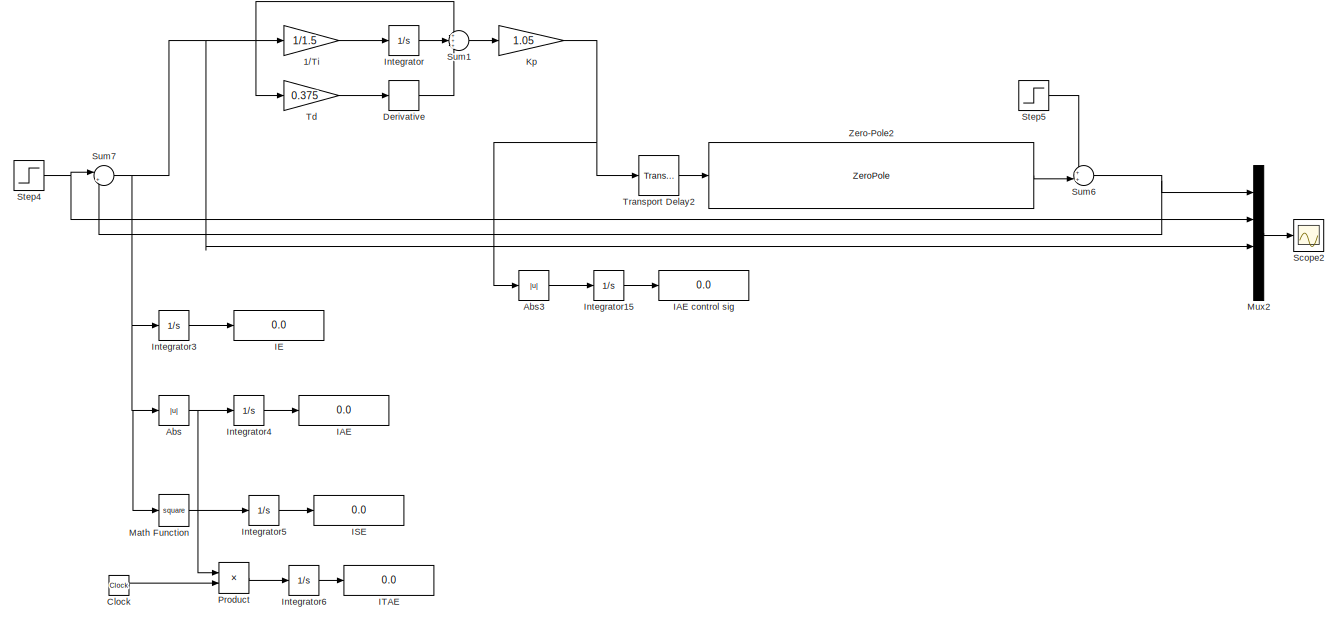
[diagram: root canvas - part 1/27, top right region]
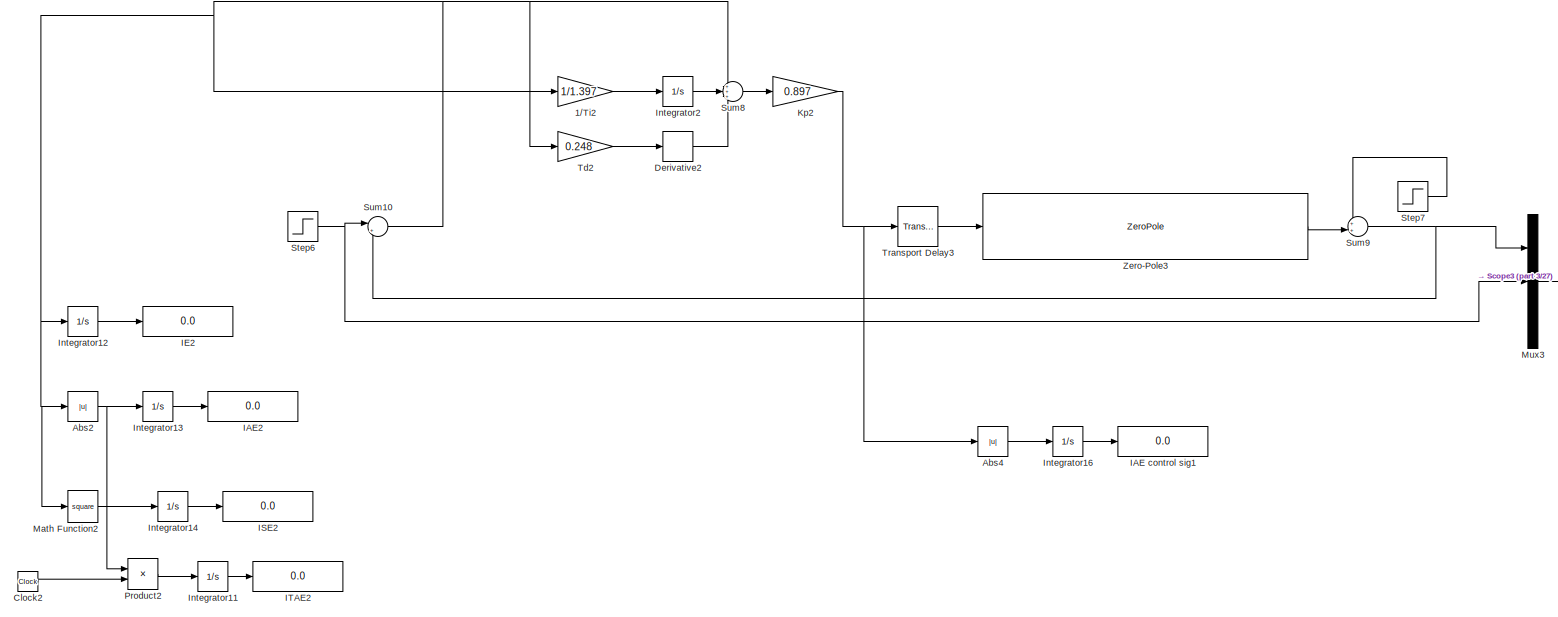
[diagram: root canvas - part 2/27, top right region]
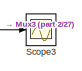
[diagram: root canvas - part 3/27, top right region]
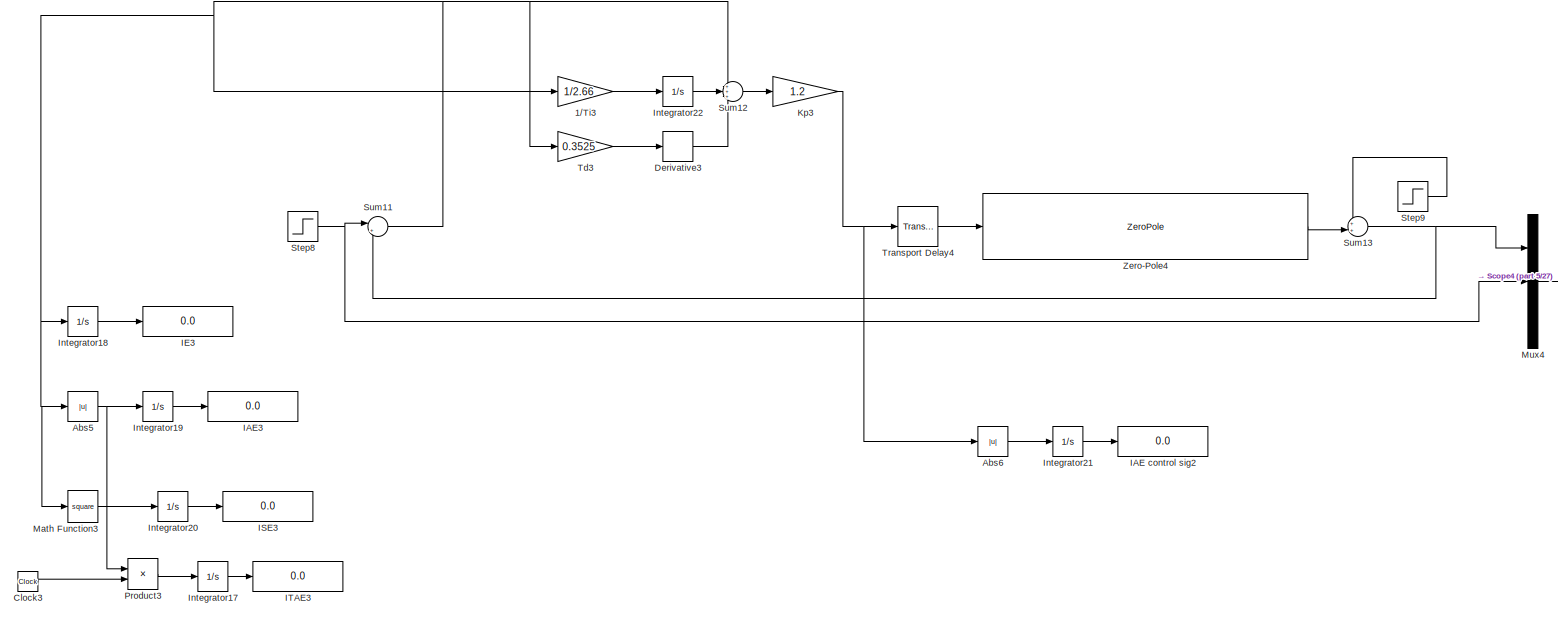
[diagram: root canvas - part 4/27, top right region]
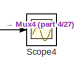
[diagram: root canvas - part 5/27, top right region]
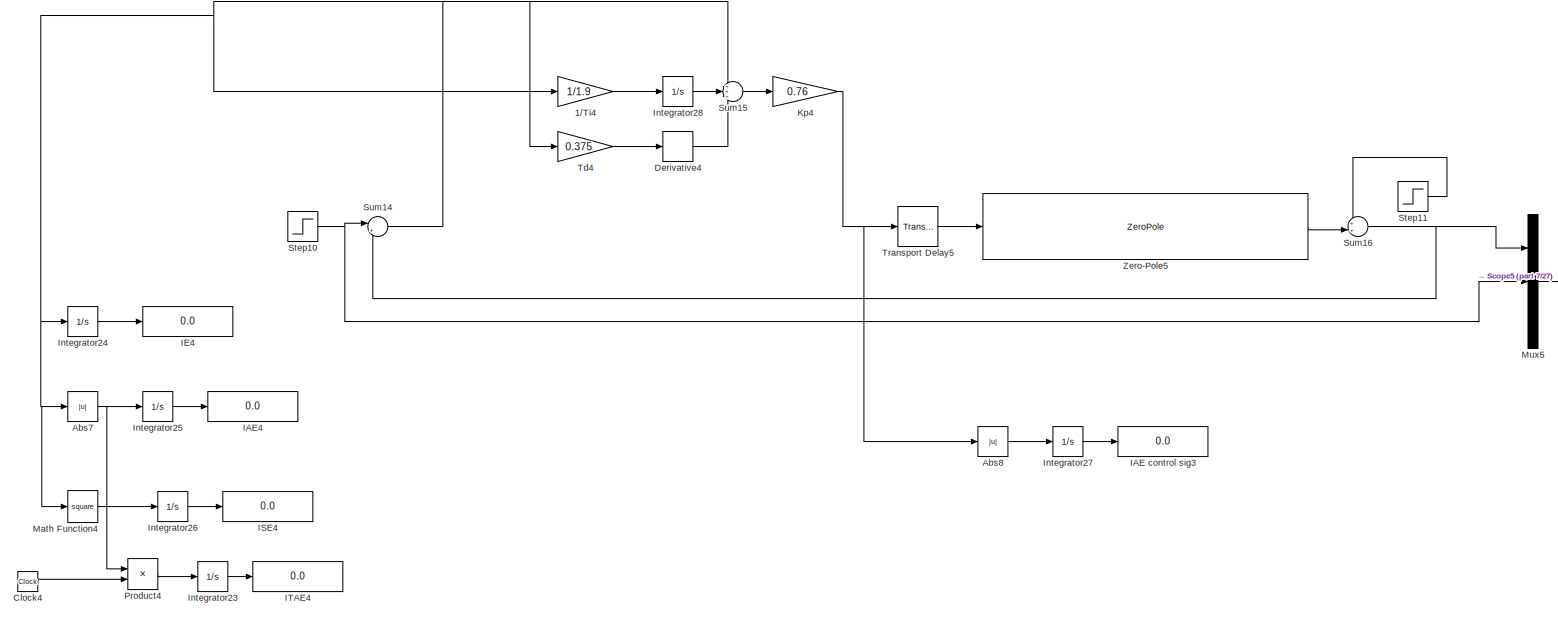
[diagram: root canvas - part 6/27, top right region]
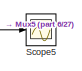
[diagram: root canvas - part 7/27, top right region]
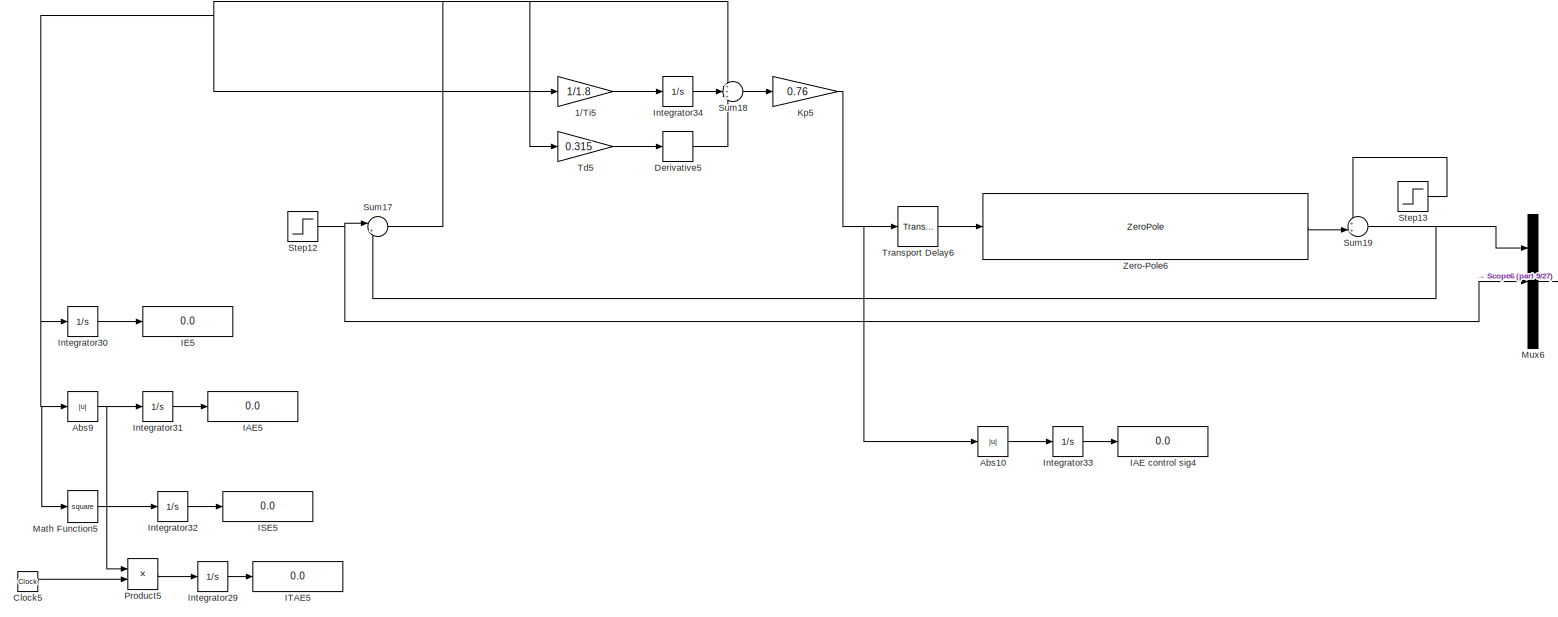
[diagram: root canvas - part 8/27, middle right region]
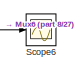
[diagram: root canvas - part 9/27, middle right region]
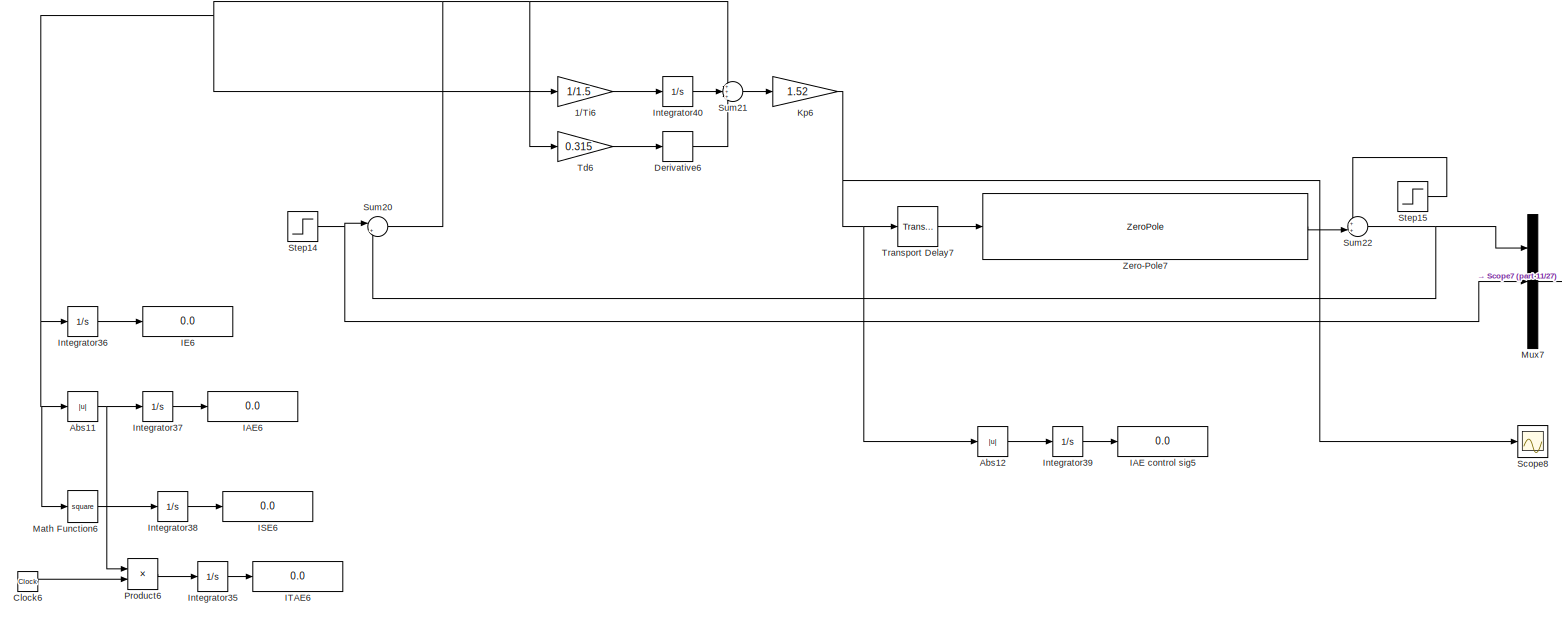
[diagram: root canvas - part 10/27, middle right region]
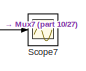
[diagram: root canvas - part 11/27, middle right region]
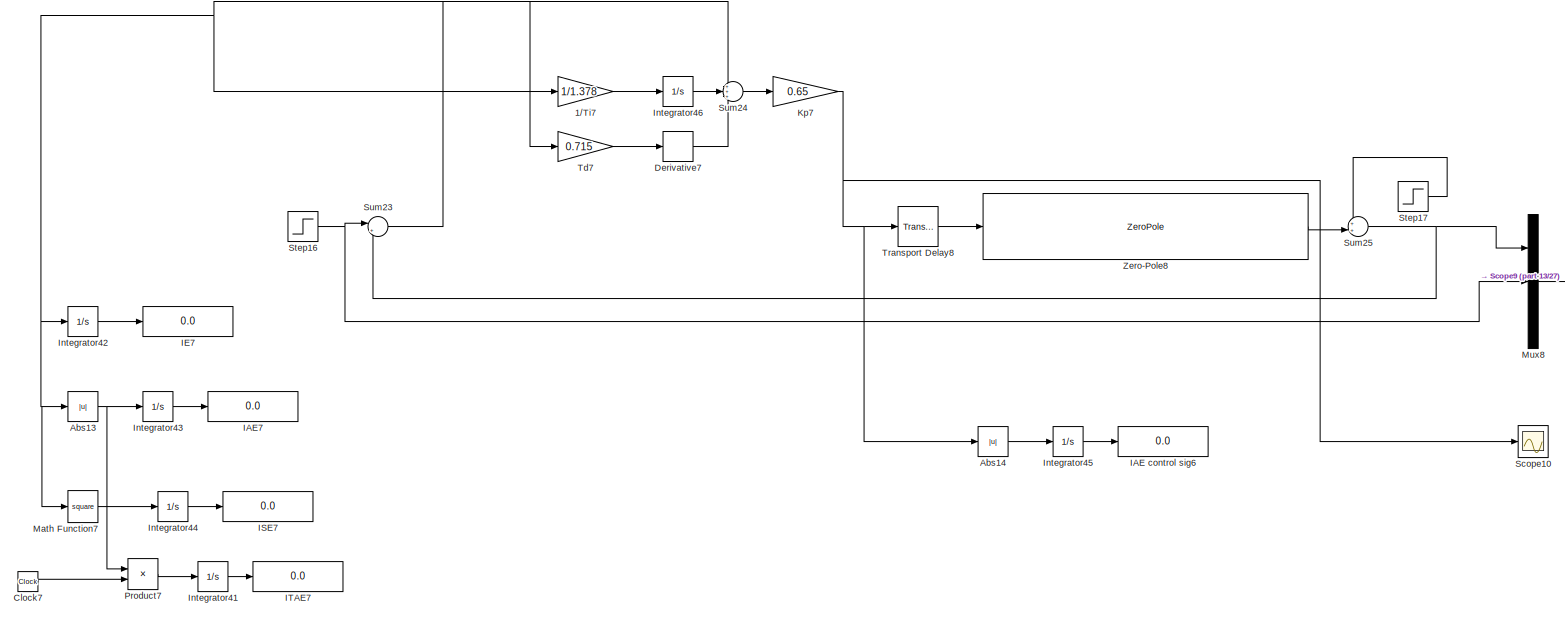
[diagram: root canvas - part 12/27, middle right region]
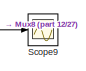
[diagram: root canvas - part 13/27, middle right region]
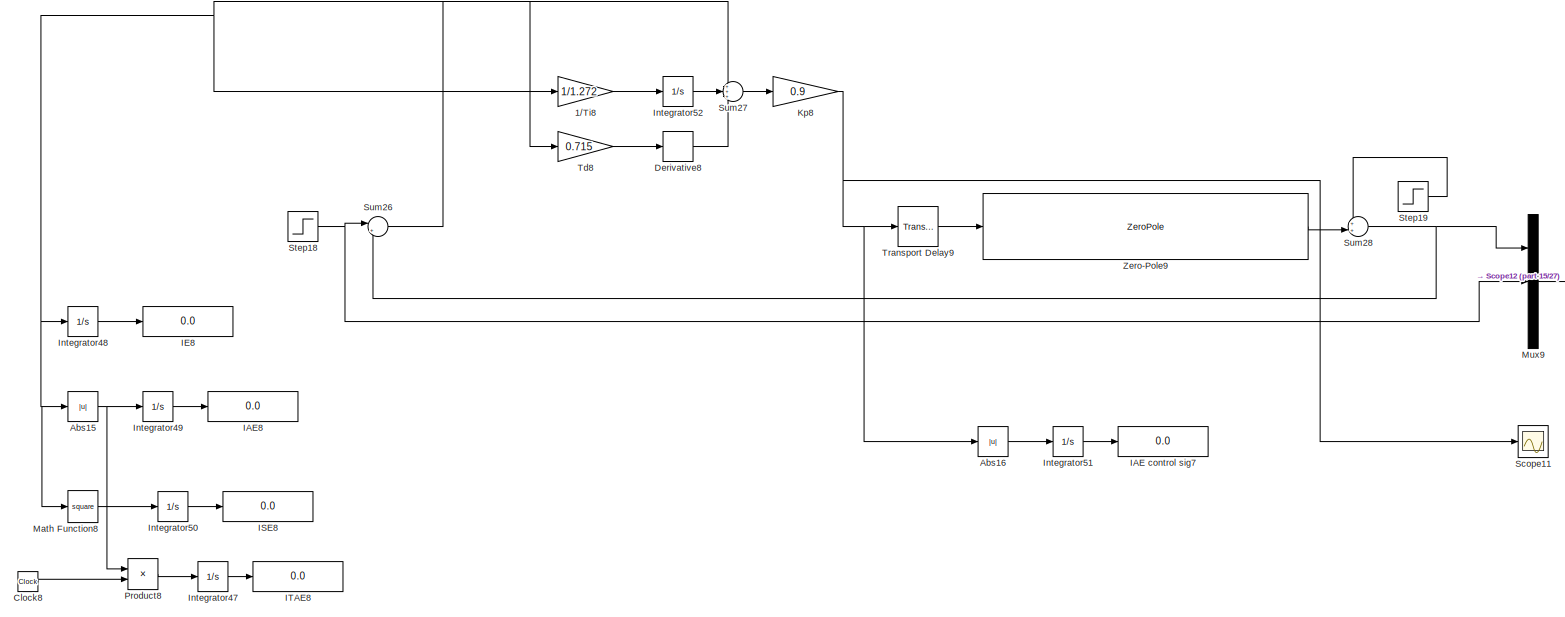
[diagram: root canvas - part 14/27, middle right region]
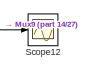
[diagram: root canvas - part 15/27, middle right region]
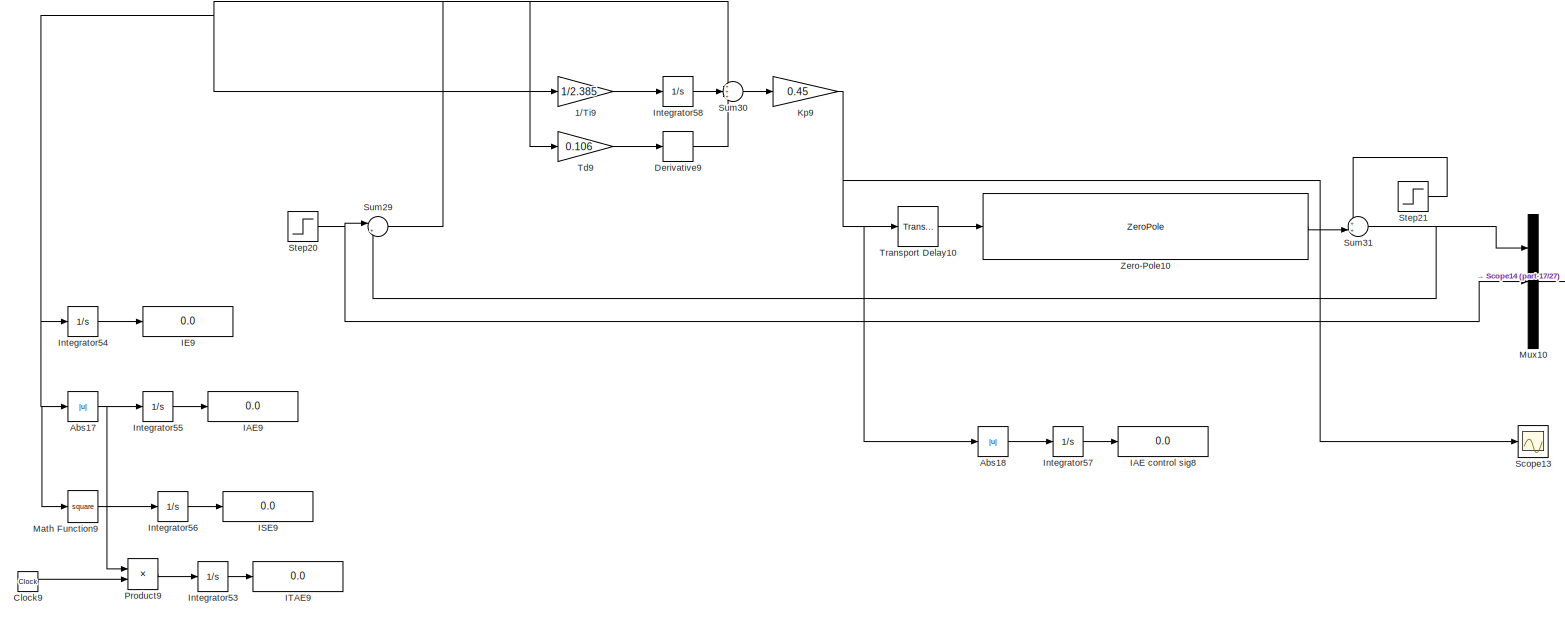
[diagram: root canvas - part 16/27, bottom right region]
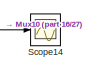
[diagram: root canvas - part 17/27, bottom right region]
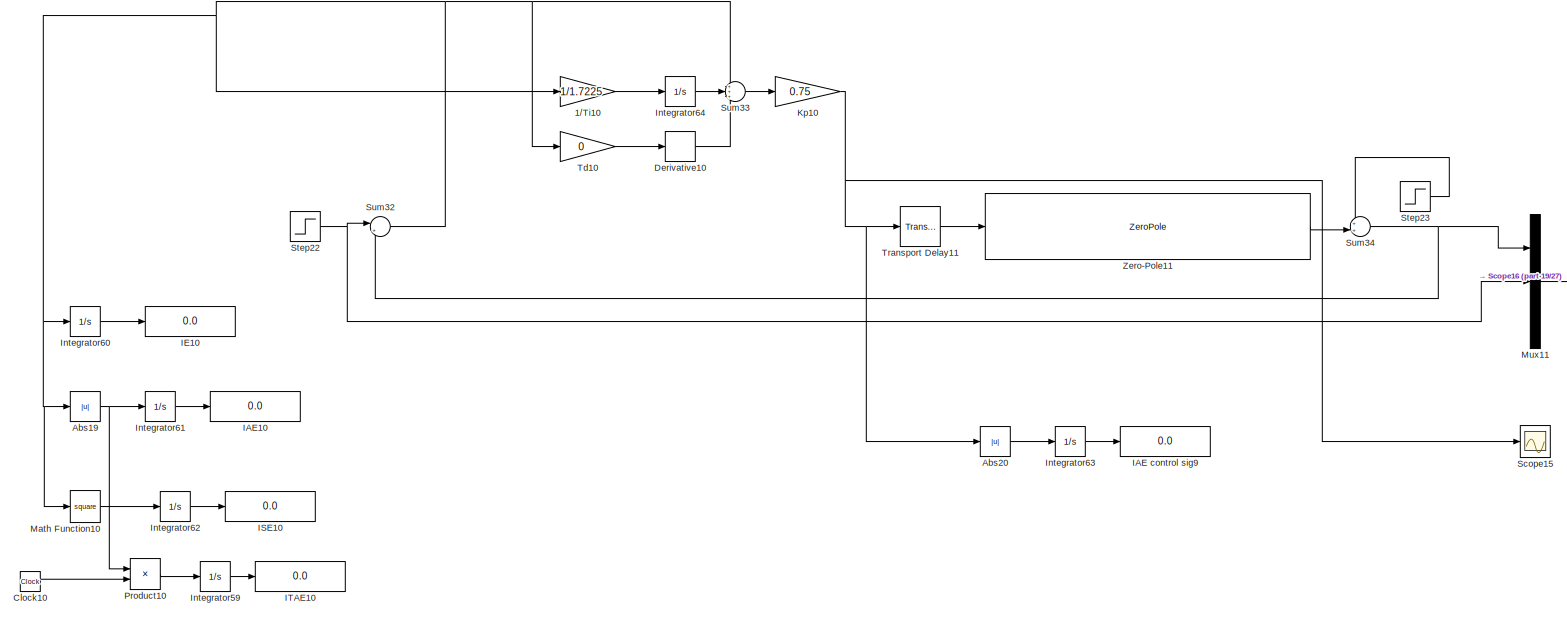
[diagram: root canvas - part 18/27, bottom right region]
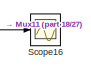
[diagram: root canvas - part 19/27, bottom right region]
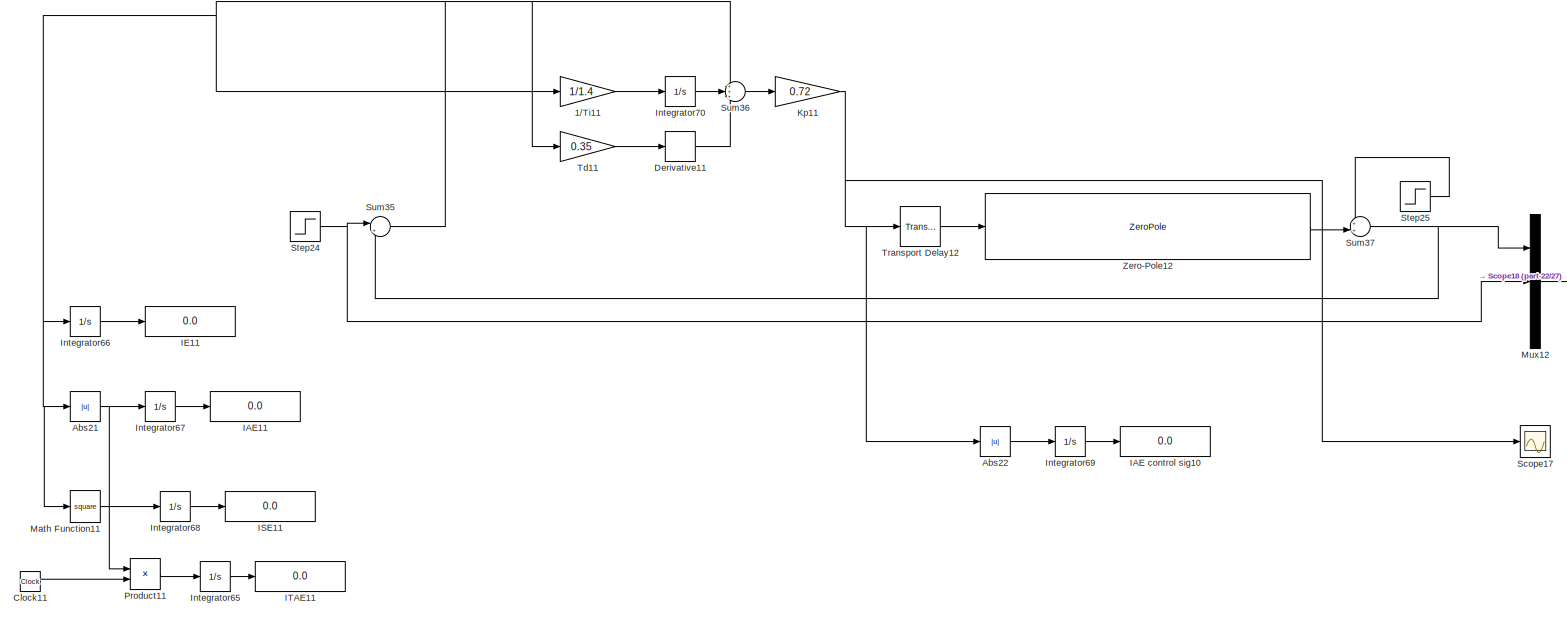
[diagram: root canvas - part 20/27, bottom right region]
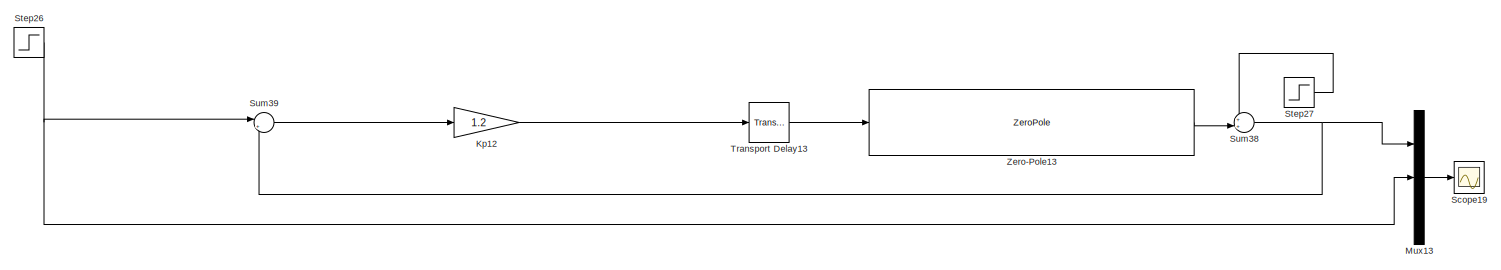
[diagram: root canvas - part 21/27, bottom left region]
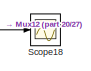
[diagram: root canvas - part 22/27, bottom right region]
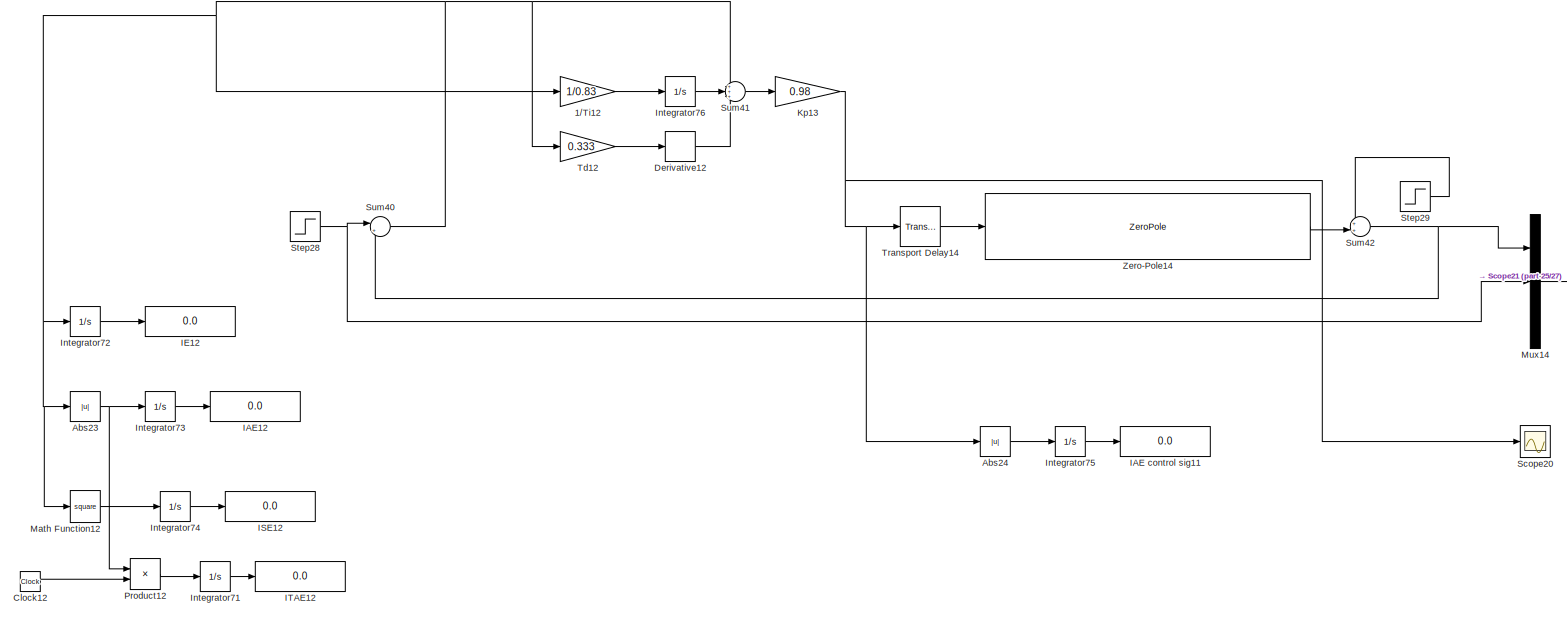
[diagram: root canvas - part 23/27, bottom right region]
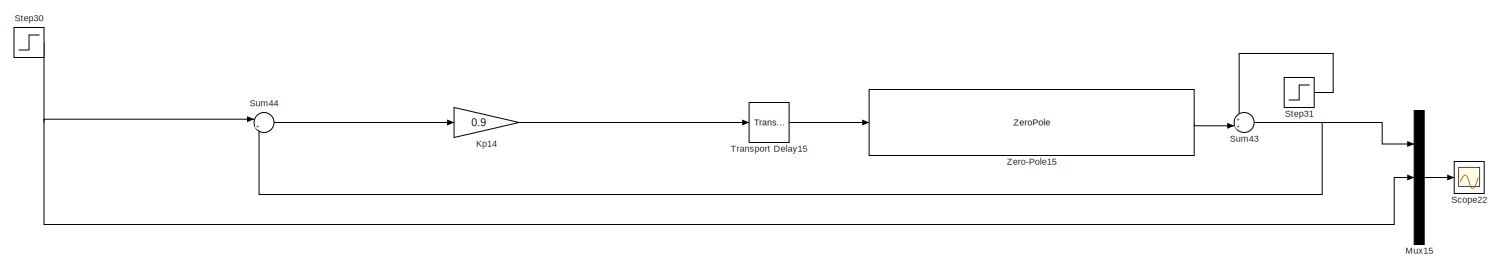
[diagram: root canvas - part 24/27, bottom left region]
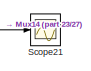
[diagram: root canvas - part 25/27, bottom right region]
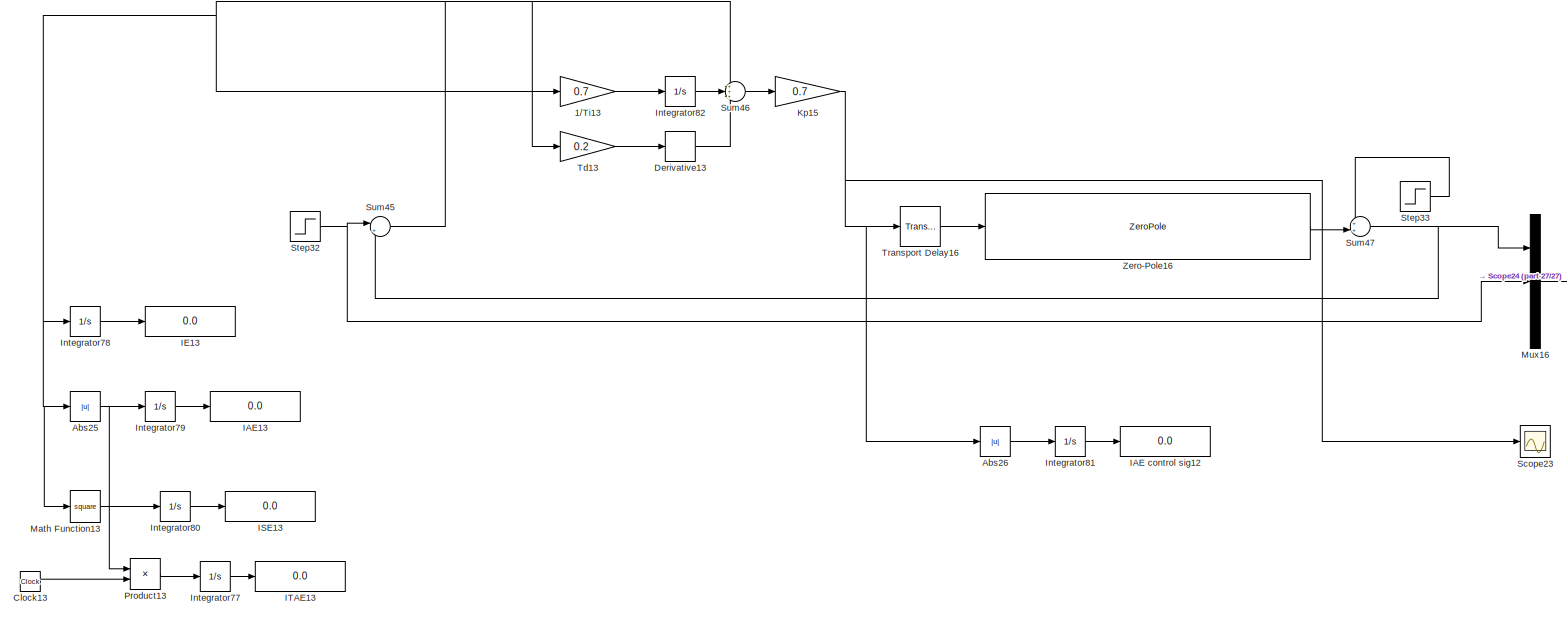
[diagram: root canvas - part 26/27, bottom right region]
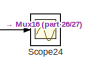
[diagram: root canvas - part 27/27, bottom right region]
MODEL slx_db4cfb69f872
KIND model
CONFIG AbsTol = auto
CONFIG EnableMultiTasking = off
CONFIG FixedStep = auto
CONFIG MaxStep = auto
CONFIG MinStep = auto
CONFIG RelTol = 1e-3
CONFIG SampleTimeConstraint = Unconstrained
CONFIG SolverName = VariableStepAuto
CONFIG StartTime = 0.0
CONFIG StopTime = 30
BLOCK [Gain] 1//Ti
  Gain = 1/1.5
BLOCK [Gain] 1//Ti10
  Gain = 1/1.7225
BLOCK [Gain] 1//Ti11
  Gain = 1/1.4
BLOCK [Gain] 1//Ti12
  Gain = 1/0.83
BLOCK [Gain] 1//Ti13
  Gain = 0.7
BLOCK [Gain] 1//Ti2
  Gain = 1/1.397
BLOCK [Gain] 1//Ti3
  Gain = 1/2.66
BLOCK [Gain] 1//Ti4
  Gain = 1/1.9
BLOCK [Gain] 1//Ti5
  Gain = 1/1.8
BLOCK [Gain] 1//Ti6
  Gain = 1/1.5
BLOCK [Gain] 1//Ti7
  Gain = 1/1.378
BLOCK [Gain] 1//Ti8
  Gain = 1/1.272
BLOCK [Gain] 1//Ti9
  Gain = 1/2.385
BLOCK [Abs] Abs
  SaturateOnIntegerOverflow = off
BLOCK [Abs] Abs10
  SaturateOnIntegerOverflow = off
BLOCK [Abs] Abs11
  SaturateOnIntegerOverflow = off
BLOCK [Abs] Abs12
  SaturateOnIntegerOverflow = off
BLOCK [Abs] Abs13
  SaturateOnIntegerOverflow = off
BLOCK [Abs] Abs14
  SaturateOnIntegerOverflow = off
BLOCK [Abs] Abs15
  SaturateOnIntegerOverflow = off
BLOCK [Abs] Abs16
  SaturateOnIntegerOverflow = off
BLOCK [Abs] Abs17
  SaturateOnIntegerOverflow = off
BLOCK [Abs] Abs18
  SaturateOnIntegerOverflow = off
BLOCK [Abs] Abs19
  SaturateOnIntegerOverflow = off
BLOCK [Abs] Abs2
  SaturateOnIntegerOverflow = off
BLOCK [Abs] Abs20
  SaturateOnIntegerOverflow = off
BLOCK [Abs] Abs21
  SaturateOnIntegerOverflow = off
BLOCK [Abs] Abs22
  SaturateOnIntegerOverflow = off
BLOCK [Abs] Abs23
  SaturateOnIntegerOverflow = off
BLOCK [Abs] Abs24
  SaturateOnIntegerOverflow = off
BLOCK [Abs] Abs25
  SaturateOnIntegerOverflow = off
BLOCK [Abs] Abs26
  SaturateOnIntegerOverflow = off
BLOCK [Abs] Abs3
  SaturateOnIntegerOverflow = off
BLOCK [Abs] Abs4
  SaturateOnIntegerOverflow = off
BLOCK [Abs] Abs5
  SaturateOnIntegerOverflow = off
BLOCK [Abs] Abs6
  SaturateOnIntegerOverflow = off
BLOCK [Abs] Abs7
  SaturateOnIntegerOverflow = off
BLOCK [Abs] Abs8
  SaturateOnIntegerOverflow = off
BLOCK [Abs] Abs9
  SaturateOnIntegerOverflow = off
BLOCK [Clock] Clock
BLOCK [Clock] Clock10
BLOCK [Clock] Clock11
BLOCK [Clock] Clock12
BLOCK [Clock] Clock13
BLOCK [Clock] Clock2
BLOCK [Clock] Clock3
BLOCK [Clock] Clock4
BLOCK [Clock] Clock5
BLOCK [Clock] Clock6
BLOCK [Clock] Clock7
BLOCK [Clock] Clock8
BLOCK [Clock] Clock9
BLOCK [Derivative] Derivative
BLOCK [Derivative] Derivative10
BLOCK [Derivative] Derivative11
BLOCK [Derivative] Derivative12
BLOCK [Derivative] Derivative13
BLOCK [Derivative] Derivative2
BLOCK [Derivative] Derivative3
BLOCK [Derivative] Derivative4
BLOCK [Derivative] Derivative5
BLOCK [Derivative] Derivative6
BLOCK [Derivative] Derivative7
BLOCK [Derivative] Derivative8
BLOCK [Derivative] Derivative9
BLOCK [Display] IAE
  Decimation = 1
  Ports = [1]
BLOCK [Display] IAE control sig
  Decimation = 1
  Ports = [1]
BLOCK [Display] IAE control sig1
  Decimation = 1
  Ports = [1]
BLOCK [Display] IAE control sig10
  Decimation = 1
  Ports = [1]
BLOCK [Display] IAE control sig11
  Decimation = 1
  Ports = [1]
BLOCK [Display] IAE control sig12
  Decimation = 1
  Ports = [1]
BLOCK [Display] IAE control sig2
  Decimation = 1
  Ports = [1]
BLOCK [Display] IAE control sig3
  Decimation = 1
  Ports = [1]
BLOCK [Display] IAE control sig4
  Decimation = 1
  Ports = [1]
BLOCK [Display] IAE control sig5
  Decimation = 1
  Ports = [1]
BLOCK [Display] IAE control sig6
  Decimation = 1
  Ports = [1]
BLOCK [Display] IAE control sig7
  Decimation = 1
  Ports = [1]
BLOCK [Display] IAE control sig8
  Decimation = 1
  Ports = [1]
BLOCK [Display] IAE control sig9
  Decimation = 1
  Ports = [1]
BLOCK [Display] IAE10
  Decimation = 1
  Ports = [1]
BLOCK [Display] IAE11
  Decimation = 1
  Ports = [1]
BLOCK [Display] IAE12
  Decimation = 1
  Ports = [1]
BLOCK [Display] IAE13
  Decimation = 1
  Ports = [1]
BLOCK [Display] IAE2
  Decimation = 1
  Ports = [1]
BLOCK [Display] IAE3
  Decimation = 1
  Ports = [1]
BLOCK [Display] IAE4
  Decimation = 1
  Ports = [1]
BLOCK [Display] IAE5
  Decimation = 1
  Ports = [1]
BLOCK [Display] IAE6
  Decimation = 1
  Ports = [1]
BLOCK [Display] IAE7
  Decimation = 1
  Ports = [1]
BLOCK [Display] IAE8
  Decimation = 1
  Ports = [1]
BLOCK [Display] IAE9
  Decimation = 1
  Ports = [1]
BLOCK [Display] IE
  Decimation = 1
  Ports = [1]
BLOCK [Display] IE10
  Decimation = 1
  Ports = [1]
BLOCK [Display] IE11
  Decimation = 1
  Ports = [1]
BLOCK [Display] IE12
  Decimation = 1
  Ports = [1]
BLOCK [Display] IE13
  Decimation = 1
  Ports = [1]
BLOCK [Display] IE2
  Decimation = 1
  Ports = [1]
BLOCK [Display] IE3
  Decimation = 1
  Ports = [1]
BLOCK [Display] IE4
  Decimation = 1
  Ports = [1]
BLOCK [Display] IE5
  Decimation = 1
  Ports = [1]
BLOCK [Display] IE6
  Decimation = 1
  Ports = [1]
BLOCK [Display] IE7
  Decimation = 1
  Ports = [1]
BLOCK [Display] IE8
  Decimation = 1
  Ports = [1]
BLOCK [Display] IE9
  Decimation = 1
  Ports = [1]
BLOCK [Display] ISE
  Decimation = 1
  Ports = [1]
BLOCK [Display] ISE10
  Decimation = 1
  Ports = [1]
BLOCK [Display] ISE11
  Decimation = 1
  Ports = [1]
BLOCK [Display] ISE12
  Decimation = 1
  Ports = [1]
BLOCK [Display] ISE13
  Decimation = 1
  Ports = [1]
BLOCK [Display] ISE2
  Decimation = 1
  Ports = [1]
BLOCK [Display] ISE3
  Decimation = 1
  Ports = [1]
BLOCK [Display] ISE4
  Decimation = 1
  Ports = [1]
BLOCK [Display] ISE5
  Decimation = 1
  Ports = [1]
BLOCK [Display] ISE6
  Decimation = 1
  Ports = [1]
BLOCK [Display] ISE7
  Decimation = 1
  Ports = [1]
BLOCK [Display] ISE8
  Decimation = 1
  Ports = [1]
BLOCK [Display] ISE9
  Decimation = 1
  Ports = [1]
BLOCK [Display] ITAE
  Decimation = 1
  Ports = [1]
BLOCK [Display] ITAE10
  Decimation = 1
  Ports = [1]
BLOCK [Display] ITAE11
  Decimation = 1
  Ports = [1]
BLOCK [Display] ITAE12
  Decimation = 1
  Ports = [1]
BLOCK [Display] ITAE13
  Decimation = 1
  Ports = [1]
BLOCK [Display] ITAE2
  Decimation = 1
  Ports = [1]
BLOCK [Display] ITAE3
  Decimation = 1
  Ports = [1]
BLOCK [Display] ITAE4
  Decimation = 1
  Ports = [1]
BLOCK [Display] ITAE5
  Decimation = 1
  Ports = [1]
BLOCK [Display] ITAE6
  Decimation = 1
  Ports = [1]
BLOCK [Display] ITAE7
  Decimation = 1
  Ports = [1]
BLOCK [Display] ITAE8
  Decimation = 1
  Ports = [1]
BLOCK [Display] ITAE9
  Decimation = 1
  Ports = [1]
BLOCK [Integrator] Integrator
  Ports = [1, 1]
BLOCK [Integrator] Integrator11
  Ports = [1, 1]
BLOCK [Integrator] Integrator12
  Ports = [1, 1]
BLOCK [Integrator] Integrator13
  Ports = [1, 1]
BLOCK [Integrator] Integrator14
  Ports = [1, 1]
BLOCK [Integrator] Integrator15
  Ports = [1, 1]
BLOCK [Integrator] Integrator16
  Ports = [1, 1]
BLOCK [Integrator] Integrator17
  Ports = [1, 1]
BLOCK [Integrator] Integrator18
  Ports = [1, 1]
BLOCK [Integrator] Integrator19
  Ports = [1, 1]
BLOCK [Integrator] Integrator2
  Ports = [1, 1]
BLOCK [Integrator] Integrator20
  Ports = [1, 1]
BLOCK [Integrator] Integrator21
  Ports = [1, 1]
BLOCK [Integrator] Integrator22
  Ports = [1, 1]
BLOCK [Integrator] Integrator23
  Ports = [1, 1]
BLOCK [Integrator] Integrator24
  Ports = [1, 1]
BLOCK [Integrator] Integrator25
  Ports = [1, 1]
BLOCK [Integrator] Integrator26
  Ports = [1, 1]
BLOCK [Integrator] Integrator27
  Ports = [1, 1]
BLOCK [Integrator] Integrator28
  Ports = [1, 1]
BLOCK [Integrator] Integrator29
  Ports = [1, 1]
BLOCK [Integrator] Integrator3
  Ports = [1, 1]
BLOCK [Integrator] Integrator30
  Ports = [1, 1]
BLOCK [Integrator] Integrator31
  Ports = [1, 1]
BLOCK [Integrator] Integrator32
  Ports = [1, 1]
BLOCK [Integrator] Integrator33
  Ports = [1, 1]
BLOCK [Integrator] Integrator34
  Ports = [1, 1]
BLOCK [Integrator] Integrator35
  Ports = [1, 1]
BLOCK [Integrator] Integrator36
  Ports = [1, 1]
BLOCK [Integrator] Integrator37
  Ports = [1, 1]
BLOCK [Integrator] Integrator38
  Ports = [1, 1]
BLOCK [Integrator] Integrator39
  Ports = [1, 1]
BLOCK [Integrator] Integrator4
  Ports = [1, 1]
BLOCK [Integrator] Integrator40
  Ports = [1, 1]
BLOCK [Integrator] Integrator41
  Ports = [1, 1]
BLOCK [Integrator] Integrator42
  Ports = [1, 1]
BLOCK [Integrator] Integrator43
  Ports = [1, 1]
BLOCK [Integrator] Integrator44
  Ports = [1, 1]
BLOCK [Integrator] Integrator45
  Ports = [1, 1]
BLOCK [Integrator] Integrator46
  Ports = [1, 1]
BLOCK [Integrator] Integrator47
  Ports = [1, 1]
BLOCK [Integrator] Integrator48
  Ports = [1, 1]
BLOCK [Integrator] Integrator49
  Ports = [1, 1]
BLOCK [Integrator] Integrator5
  Ports = [1, 1]
BLOCK [Integrator] Integrator50
  Ports = [1, 1]
BLOCK [Integrator] Integrator51
  Ports = [1, 1]
BLOCK [Integrator] Integrator52
  Ports = [1, 1]
BLOCK [Integrator] Integrator53
  Ports = [1, 1]
BLOCK [Integrator] Integrator54
  Ports = [1, 1]
BLOCK [Integrator] Integrator55
  Ports = [1, 1]
BLOCK [Integrator] Integrator56
  Ports = [1, 1]
BLOCK [Integrator] Integrator57
  Ports = [1, 1]
BLOCK [Integrator] Integrator58
  Ports = [1, 1]
BLOCK [Integrator] Integrator59
  Ports = [1, 1]
BLOCK [Integrator] Integrator6
  Ports = [1, 1]
BLOCK [Integrator] Integrator60
  Ports = [1, 1]
BLOCK [Integrator] Integrator61
  Ports = [1, 1]
BLOCK [Integrator] Integrator62
  Ports = [1, 1]
BLOCK [Integrator] Integrator63
  Ports = [1, 1]
BLOCK [Integrator] Integrator64
  Ports = [1, 1]
BLOCK [Integrator] Integrator65
  Ports = [1, 1]
BLOCK [Integrator] Integrator66
  Ports = [1, 1]
BLOCK [Integrator] Integrator67
  Ports = [1, 1]
BLOCK [Integrator] Integrator68
  Ports = [1, 1]
BLOCK [Integrator] Integrator69
  Ports = [1, 1]
BLOCK [Integrator] Integrator70
  Ports = [1, 1]
BLOCK [Integrator] Integrator71
  Ports = [1, 1]
BLOCK [Integrator] Integrator72
  Ports = [1, 1]
BLOCK [Integrator] Integrator73
  Ports = [1, 1]
BLOCK [Integrator] Integrator74
  Ports = [1, 1]
BLOCK [Integrator] Integrator75
  Ports = [1, 1]
BLOCK [Integrator] Integrator76
  Ports = [1, 1]
BLOCK [Integrator] Integrator77
  Ports = [1, 1]
BLOCK [Integrator] Integrator78
  Ports = [1, 1]
BLOCK [Integrator] Integrator79
  Ports = [1, 1]
BLOCK [Integrator] Integrator80
  Ports = [1, 1]
BLOCK [Integrator] Integrator81
  Ports = [1, 1]
BLOCK [Integrator] Integrator82
  Ports = [1, 1]
BLOCK [Gain] Kp
  Gain = 1.05
BLOCK [Gain] Kp10
  Gain = 0.75
BLOCK [Gain] Kp11
  Gain = 0.72
BLOCK [Gain] Kp12
  Gain = 1.2
BLOCK [Gain] Kp13
  Gain = 0.98
BLOCK [Gain] Kp14
  Gain = 0.9
BLOCK [Gain] Kp15
  Gain = 0.7
BLOCK [Gain] Kp2
  Gain = 0.897
BLOCK [Gain] Kp3
  Gain = 1.2
BLOCK [Gain] Kp4
  Gain = 0.76
BLOCK [Gain] Kp5
  Gain = 0.76
BLOCK [Gain] Kp6
  Gain = 1.52
BLOCK [Gain] Kp7
  Gain = 0.65
BLOCK [Gain] Kp8
  Gain = 0.9
BLOCK [Gain] Kp9
  Gain = 0.45
BLOCK [Math] Math Function
  Operator = square
  Ports = [1, 1]
BLOCK [Math] Math Function10
  Operator = square
  Ports = [1, 1]
BLOCK [Math] Math Function11
  Operator = square
  Ports = [1, 1]
BLOCK [Math] Math Function12
  Operator = square
  Ports = [1, 1]
BLOCK [Math] Math Function13
  Operator = square
  Ports = [1, 1]
BLOCK [Math] Math Function2
  Operator = square
  Ports = [1, 1]
BLOCK [Math] Math Function3
  Operator = square
  Ports = [1, 1]
BLOCK [Math] Math Function4
  Operator = square
  Ports = [1, 1]
BLOCK [Math] Math Function5
  Operator = square
  Ports = [1, 1]
BLOCK [Math] Math Function6
  Operator = square
  Ports = [1, 1]
BLOCK [Math] Math Function7
  Operator = square
  Ports = [1, 1]
BLOCK [Math] Math Function8
  Operator = square
  Ports = [1, 1]
BLOCK [Math] Math Function9
  Operator = square
  Ports = [1, 1]
BLOCK [Mux] Mux10
  DisplayOption = bar
  Inputs = 3
  Ports = [3, 1]
BLOCK [Mux] Mux11
  DisplayOption = bar
  Inputs = 3
  Ports = [3, 1]
BLOCK [Mux] Mux12
  DisplayOption = bar
  Inputs = 3
  Ports = [3, 1]
BLOCK [Mux] Mux13
  DisplayOption = bar
  Inputs = 3
  Ports = [3, 1]
BLOCK [Mux] Mux14
  DisplayOption = bar
  Inputs = 3
  Ports = [3, 1]
BLOCK [Mux] Mux15
  DisplayOption = bar
  Inputs = 3
  Ports = [3, 1]
BLOCK [Mux] Mux16
  DisplayOption = bar
  Inputs = 3
  Ports = [3, 1]
BLOCK [Mux] Mux2
  DisplayOption = bar
  Ports = [4, 1]
BLOCK [Mux] Mux3
  DisplayOption = bar
  Inputs = 3
  Ports = [3, 1]
BLOCK [Mux] Mux4
  DisplayOption = bar
  Inputs = 3
  Ports = [3, 1]
BLOCK [Mux] Mux5
  DisplayOption = bar
  Inputs = 3
  Ports = [3, 1]
BLOCK [Mux] Mux6
  DisplayOption = bar
  Inputs = 3
  Ports = [3, 1]
BLOCK [Mux] Mux7
  DisplayOption = bar
  Inputs = 3
  Ports = [3, 1]
BLOCK [Mux] Mux8
  DisplayOption = bar
  Inputs = 3
  Ports = [3, 1]
BLOCK [Mux] Mux9
  DisplayOption = bar
  Inputs = 3
  Ports = [3, 1]
BLOCK [Product] Product
  Ports = [2, 1]
BLOCK [Product] Product10
  Ports = [2, 1]
BLOCK [Product] Product11
  Ports = [2, 1]
BLOCK [Product] Product12
  Ports = [2, 1]
BLOCK [Product] Product13
  Ports = [2, 1]
BLOCK [Product] Product2
  Ports = [2, 1]
BLOCK [Product] Product3
  Ports = [2, 1]
BLOCK [Product] Product4
  Ports = [2, 1]
BLOCK [Product] Product5
  Ports = [2, 1]
BLOCK [Product] Product6
  Ports = [2, 1]
BLOCK [Product] Product7
  Ports = [2, 1]
BLOCK [Product] Product8
  Ports = [2, 1]
BLOCK [Product] Product9
  Ports = [2, 1]
BLOCK [Scope] Scope10
  Floating = off
  NumInputPorts = 1
  Ports = [1]
  ScopeSpecificationString = Simulink.scopes.TimeScopeBlockCfg('CurrentConfiguration', extmgr.ConfigurationSet(extmgr.Configuration('Core','General UI',true,'FigureColor',[1 1 1]),extmgr.Configuration('Core','Source UI',true),extmgr.Configuration('Sources','WiredSimulink',true,'DataLoggingVariableName','ScopeData6'),extmgr.Configuration('Visuals','Time Domain',true,'SerializedDisplays',{struct('MinYLimReal','-2299491130539.95...<+2237ch>
BLOCK [Scope] Scope11
  Floating = off
  NumInputPorts = 1
  Ports = [1]
  ScopeSpecificationString = Simulink.scopes.TimeScopeBlockCfg('CurrentConfiguration', extmgr.ConfigurationSet(extmgr.Configuration('Core','General UI',true,'FigureColor',[1 1 1]),extmgr.Configuration('Core','Source UI',true),extmgr.Configuration('Sources','WiredSimulink',true,'DataLoggingVariableName','ScopeData8'),extmgr.Configuration('Visuals','Time Domain',true,'SerializedDisplays',{struct('MinYLimReal','-2369007753208.51...<+2237ch>
BLOCK [Scope] Scope12
  Floating = off
  NumInputPorts = 1
  Ports = [1]
  ScopeSpecificationString = Simulink.scopes.TimeScopeBlockCfg('CurrentConfiguration', extmgr.ConfigurationSet(extmgr.Configuration('Core','General UI',true,'FigureColor',[1 1 1]),extmgr.Configuration('Core','Source UI',true),extmgr.Configuration('Sources','WiredSimulink',true,'DataLoggingVariableName','ScopeData9'),extmgr.Configuration('Visuals','Time Domain',true,'SerializedDisplays',{struct('MinYLimReal','-0.21109','MaxYLi...<+2229ch>
BLOCK [Scope] Scope13
  Floating = off
  NumInputPorts = 1
  Ports = [1]
  ScopeSpecificationString = Simulink.scopes.TimeScopeBlockCfg('CurrentConfiguration', extmgr.ConfigurationSet(extmgr.Configuration('Core','General UI',true,'FigureColor',[1 1 1]),extmgr.Configuration('Core','Source UI',true),extmgr.Configuration('Sources','WiredSimulink',true,'DataLoggingVariableName','ScopeData10'),extmgr.Configuration('Visuals','Time Domain',true,'SerializedDisplays',{struct('MinYLimReal','-236010170901.88...<+2230ch>
BLOCK [Scope] Scope14
  Floating = off
  NumInputPorts = 1
  Ports = [1]
  ScopeSpecificationString = Simulink.scopes.TimeScopeBlockCfg('CurrentConfiguration', extmgr.ConfigurationSet(extmgr.Configuration('Core','General UI',true,'FigureColor',[1 1 1]),extmgr.Configuration('Core','Source UI',true),extmgr.Configuration('Sources','WiredSimulink',true,'DataLoggingVariableName','ScopeData11'),extmgr.Configuration('Visuals','Time Domain',true,'SerializedDisplays',{struct('MinYLimReal','-0.18635','MaxYL...<+2228ch>
BLOCK [Scope] Scope15
  Floating = off
  NumInputPorts = 1
  Ports = [1]
  ScopeSpecificationString = Simulink.scopes.TimeScopeBlockCfg('CurrentConfiguration', extmgr.ConfigurationSet(extmgr.Configuration('Core','General UI',true,'FigureColor',[1 1 1]),extmgr.Configuration('Core','Source UI',true),extmgr.Configuration('Sources','WiredSimulink',true,'DataLoggingVariableName','ScopeData12'),extmgr.Configuration('Visuals','Time Domain',true,'SerializedDisplays',{struct('MinYLimReal','-2369007753208.5...<+2238ch>
BLOCK [Scope] Scope16
  Floating = off
  NumInputPorts = 1
  Ports = [1]
  ScopeSpecificationString = Simulink.scopes.TimeScopeBlockCfg('CurrentConfiguration', extmgr.ConfigurationSet(extmgr.Configuration('Core','General UI',true,'FigureColor',[1 1 1]),extmgr.Configuration('Core','Source UI',true),extmgr.Configuration('Sources','WiredSimulink',true,'DataLoggingVariableName','ScopeData13'),extmgr.Configuration('Visuals','Time Domain',true,'SerializedDisplays',{struct('MinYLimReal','-0.18755','MaxYL...<+2231ch>
BLOCK [Scope] Scope17
  Floating = off
  NumInputPorts = 1
  Ports = [1]
  ScopeSpecificationString = Simulink.scopes.TimeScopeBlockCfg('CurrentConfiguration', extmgr.ConfigurationSet(extmgr.Configuration('Core','General UI',true,'FigureColor',[1 1 1]),extmgr.Configuration('Core','Source UI',true),extmgr.Configuration('Sources','WiredSimulink',true,'DataLoggingVariableName','ScopeData14'),extmgr.Configuration('Visuals','Time Domain',true,'SerializedDisplays',{struct('MinYLimReal','-2369007753208.5...<+2238ch>
BLOCK [Scope] Scope18
  Floating = off
  NumInputPorts = 1
  Ports = [1]
  ScopeSpecificationString = Simulink.scopes.TimeScopeBlockCfg('CurrentConfiguration', extmgr.ConfigurationSet(extmgr.Configuration('Core','General UI',true,'FigureColor',[1 1 1]),extmgr.Configuration('Core','Source UI',true),extmgr.Configuration('Sources','WiredSimulink',true,'DataLoggingVariableName','ScopeData15'),extmgr.Configuration('Visuals','Time Domain',true,'SerializedDisplays',{struct('MinYLimReal','-0.16191','MaxYL...<+2230ch>
BLOCK [Scope] Scope19
  Floating = off
  NumInputPorts = 1
  Ports = [1]
  ScopeSpecificationString = Simulink.scopes.TimeScopeBlockCfg('CurrentConfiguration', extmgr.ConfigurationSet(extmgr.Configuration('Core','General UI',true,'FigureColor',[1 1 1]),extmgr.Configuration('Core','Source UI',true),extmgr.Configuration('Sources','WiredSimulink',true,'DataLoggingVariableName','ScopeData16'),extmgr.Configuration('Visuals','Time Domain',true,'SerializedDisplays',{struct('MinYLimReal','-0.16954','MaxYL...<+2230ch>
BLOCK [Scope] Scope2
  Floating = off
  NumInputPorts = 1
  Ports = [1]
  ScopeSpecificationString = Simulink.scopes.TimeScopeBlockCfg('CurrentConfiguration', extmgr.ConfigurationSet(extmgr.Configuration('Core','General UI',true,'FigureColor',[1 1 1]),extmgr.Configuration('Core','Source UI',true),extmgr.Configuration('Sources','WiredSimulink',true,'DataLoggingVariableName','ScopeData2'),extmgr.Configuration('Visuals','Time Domain',true,'SerializedDisplays',{struct('MinYLimReal','-0.75185','MaxYLi...<+2203ch>
BLOCK [Scope] Scope20
  Floating = off
  NumInputPorts = 1
  Ports = [1]
  ScopeSpecificationString = Simulink.scopes.TimeScopeBlockCfg('CurrentConfiguration', extmgr.ConfigurationSet(extmgr.Configuration('Core','General UI',true,'FigureColor',[1 1 1]),extmgr.Configuration('Core','Source UI',true),extmgr.Configuration('Sources','WiredSimulink',true,'DataLoggingVariableName','ScopeData17'),extmgr.Configuration('Visuals','Time Domain',true,'SerializedDisplays',{struct('MinYLimReal','-2369007753208.5...<+2238ch>
BLOCK [Scope] Scope21
  Floating = off
  NumInputPorts = 1
  Ports = [1]
  ScopeSpecificationString = Simulink.scopes.TimeScopeBlockCfg('CurrentConfiguration', extmgr.ConfigurationSet(extmgr.Configuration('Core','General UI',true,'FigureColor',[1 1 1]),extmgr.Configuration('Core','Source UI',true),extmgr.Configuration('Sources','WiredSimulink',true,'DataLoggingVariableName','ScopeData18'),extmgr.Configuration('Visuals','Time Domain',true,'SerializedDisplays',{struct('MinYLimReal','-0.23071','MaxYL...<+2202ch>
BLOCK [Scope] Scope22
  Floating = off
  NumInputPorts = 1
  Ports = [1]
  ScopeSpecificationString = Simulink.scopes.TimeScopeBlockCfg('CurrentConfiguration', extmgr.ConfigurationSet(extmgr.Configuration('Core','General UI',true,'FigureColor',[1 1 1]),extmgr.Configuration('Core','Source UI',true),extmgr.Configuration('Sources','WiredSimulink',true,'DataLoggingVariableName','ScopeData19'),extmgr.Configuration('Visuals','Time Domain',true,'SerializedDisplays',{struct('MinYLimReal','-0.14249','MaxYL...<+2230ch>
BLOCK [Scope] Scope23
  Floating = off
  NumInputPorts = 1
  Ports = [1]
  ScopeSpecificationString = Simulink.scopes.TimeScopeBlockCfg('CurrentConfiguration', extmgr.ConfigurationSet(extmgr.Configuration('Core','General UI',true,'FigureColor',[1 1 1]),extmgr.Configuration('Core','Source UI',true),extmgr.Configuration('Sources','WiredSimulink',true,'DataLoggingVariableName','ScopeData20'),extmgr.Configuration('Visuals','Time Domain',true,'SerializedDisplays',{struct('MinYLimReal','-2369007753208.5...<+2238ch>
BLOCK [Scope] Scope24
  Floating = off
  NumInputPorts = 1
  Ports = [1]
  ScopeSpecificationString = Simulink.scopes.TimeScopeBlockCfg('CurrentConfiguration', extmgr.ConfigurationSet(extmgr.Configuration('Core','General UI',true,'FigureColor',[1 1 1]),extmgr.Configuration('Core','Source UI',true),extmgr.Configuration('Sources','WiredSimulink',true,'DataLoggingVariableName','ScopeData21'),extmgr.Configuration('Visuals','Time Domain',true,'SerializedDisplays',{struct('MinYLimReal','-0.1875','MaxYLi...<+2200ch>
BLOCK [Scope] Scope3
  Floating = off
  NumInputPorts = 1
  Ports = [1]
  ScopeSpecificationString = Simulink.scopes.TimeScopeBlockCfg('CurrentConfiguration', extmgr.ConfigurationSet(extmgr.Configuration('Core','General UI',true,'FigureColor',[1 1 1]),extmgr.Configuration('Core','Source UI',true),extmgr.Configuration('Sources','WiredSimulink',true,'DataLoggingVariableName','ScopeData3'),extmgr.Configuration('Visuals','Time Domain',true,'SerializedDisplays',{struct('MinYLimReal','-0.1875','MaxYLim...<+2226ch>
BLOCK [Scope] Scope4
  Floating = off
  NumInputPorts = 1
  Ports = [1]
  ScopeSpecificationString = Simulink.scopes.TimeScopeBlockCfg('CurrentConfiguration', extmgr.ConfigurationSet(extmgr.Configuration('Core','General UI',true,'FigureColor',[1 1 1]),extmgr.Configuration('Core','Source UI',true),extmgr.Configuration('Sources','WiredSimulink',true,'DataLoggingVariableName','ScopeData1'),extmgr.Configuration('Visuals','Time Domain',true,'SerializedDisplays',{struct('MinYLimReal','-0.18484','MaxYLi...<+2229ch>
BLOCK [Scope] Scope5
  Floating = off
  NumInputPorts = 1
  Ports = [1]
  ScopeSpecificationString = Simulink.scopes.TimeScopeBlockCfg('CurrentConfiguration', extmgr.ConfigurationSet(extmgr.Configuration('Core','General UI',true,'FigureColor',[1 1 1]),extmgr.Configuration('Core','Source UI',true),extmgr.Configuration('Sources','WiredSimulink',true,'DataLoggingVariableName','ScopeData2'),extmgr.Configuration('Visuals','Time Domain',true,'SerializedDisplays',{struct('MinYLimReal','-0.1875','MaxYLim...<+2227ch>
BLOCK [Scope] Scope6
  Floating = off
  NumInputPorts = 1
  Ports = [1]
  ScopeSpecificationString = Simulink.scopes.TimeScopeBlockCfg('CurrentConfiguration', extmgr.ConfigurationSet(extmgr.Configuration('Core','General UI',true,'FigureColor',[1 1 1]),extmgr.Configuration('Core','Source UI',true),extmgr.Configuration('Sources','WiredSimulink',true,'DataLoggingVariableName','ScopeData3'),extmgr.Configuration('Visuals','Time Domain',true,'SerializedDisplays',{struct('MinYLimReal','-0.1875','MaxYLim...<+2223ch>
BLOCK [Scope] Scope7
  Floating = off
  NumInputPorts = 1
  Ports = [1]
  ScopeSpecificationString = Simulink.scopes.TimeScopeBlockCfg('CurrentConfiguration', extmgr.ConfigurationSet(extmgr.Configuration('Core','General UI',true,'FigureColor',[1 1 1]),extmgr.Configuration('Core','Source UI',true),extmgr.Configuration('Sources','WiredSimulink',true,'DataLoggingVariableName','ScopeData4'),extmgr.Configuration('Visuals','Time Domain',true,'SerializedDisplays',{struct('MinYLimReal','-3.61506','MaxYLi...<+2230ch>
BLOCK [Scope] Scope8
  Floating = off
  NumInputPorts = 1
  Ports = [1]
  ScopeSpecificationString = Simulink.scopes.TimeScopeBlockCfg('CurrentConfiguration', extmgr.ConfigurationSet(extmgr.Configuration('Core','General UI',true,'FigureColor',[1 1 1]),extmgr.Configuration('Core','Source UI',true),extmgr.Configuration('Sources','WiredSimulink',true,'DataLoggingVariableName','ScopeData5'),extmgr.Configuration('Visuals','Time Domain',true,'SerializedDisplays',{struct('MinYLimReal','-2369007753208.31...<+2237ch>
BLOCK [Scope] Scope9
  Floating = off
  NumInputPorts = 1
  Ports = [1]
  ScopeSpecificationString = Simulink.scopes.TimeScopeBlockCfg('CurrentConfiguration', extmgr.ConfigurationSet(extmgr.Configuration('Core','General UI',true,'FigureColor',[1 1 1]),extmgr.Configuration('Core','Source UI',true),extmgr.Configuration('Sources','WiredSimulink',true,'DataLoggingVariableName','ScopeData7'),extmgr.Configuration('Visuals','Time Domain',true,'SerializedDisplays',{struct('MinYLimReal','-0.18749','MaxYLi...<+2230ch>
BLOCK [Step] Step10
  SampleTime = 0
  Time = 0
BLOCK [Step] Step11
  After = 0.5
  SampleTime = 0
  Time = 15
BLOCK [Step] Step12
  SampleTime = 0
  Time = 0
BLOCK [Step] Step13
  After = 0.5
  SampleTime = 0
  Time = 15
BLOCK [Step] Step14
  SampleTime = 0
  Time = 0
BLOCK [Step] Step15
  After = 0.5
  SampleTime = 0
  Time = 15
BLOCK [Step] Step16
  SampleTime = 0
  Time = 0
BLOCK [Step] Step17
  After = 0.5
  SampleTime = 0
  Time = 15
BLOCK [Step] Step18
  SampleTime = 0
  Time = 0
BLOCK [Step] Step19
  After = 0.5
  SampleTime = 0
  Time = 15
BLOCK [Step] Step20
  SampleTime = 0
  Time = 0
BLOCK [Step] Step21
  After = 0.5
  SampleTime = 0
  Time = 15
BLOCK [Step] Step22
  SampleTime = 0
  Time = 0
BLOCK [Step] Step23
  After = 0.5
  SampleTime = 0
  Time = 15
BLOCK [Step] Step24
  After = 0
  SampleTime = 0
  Time = 0
BLOCK [Step] Step25
  After = 0.5
  SampleTime = 0
  Time = 15
BLOCK [Step] Step26
  SampleTime = 0
  Time = 0
BLOCK [Step] Step27
  After = 0.5
  SampleTime = 0
  Time = 15
BLOCK [Step] Step28
  SampleTime = 0
  Time = 0
BLOCK [Step] Step29
  After = 0.5
  SampleTime = 0
  Time = 15
BLOCK [Step] Step30
  SampleTime = 0
  Time = 0
BLOCK [Step] Step31
  After = 0.5
  SampleTime = 0
  Time = 15
BLOCK [Step] Step32
  SampleTime = 0
  Time = 0
BLOCK [Step] Step33
  After = 0.5
  SampleTime = 0
  Time = 15
BLOCK [Step] Step4
  SampleTime = 0
  Time = 0
BLOCK [Step] Step5
  After = 0.5
  SampleTime = 0
  Time = 15
BLOCK [Step] Step6
  SampleTime = 0
  Time = 0
BLOCK [Step] Step7
  After = 0.5
  SampleTime = 0
  Time = 15
BLOCK [Step] Step8
  SampleTime = 0
  Time = 0
BLOCK [Step] Step9
  After = 0.5
  SampleTime = 0
  Time = 15
BLOCK [Sum] Sum1
  Inputs = +++
  Ports = [3, 1]
BLOCK [Sum] Sum10
  Inputs = |+-
  Ports = [2, 1]
BLOCK [Sum] Sum11
  Inputs = |+-
  Ports = [2, 1]
BLOCK [Sum] Sum12
  Inputs = +++
  Ports = [3, 1]
BLOCK [Sum] Sum13
  Inputs = ++|
  Ports = [2, 1]
BLOCK [Sum] Sum14
  Inputs = |+-
  Ports = [2, 1]
BLOCK [Sum] Sum15
  Inputs = +++
  Ports = [3, 1]
BLOCK [Sum] Sum16
  Inputs = ++|
  Ports = [2, 1]
BLOCK [Sum] Sum17
  Inputs = |+-
  Ports = [2, 1]
BLOCK [Sum] Sum18
  Inputs = +++
  Ports = [3, 1]
BLOCK [Sum] Sum19
  Inputs = ++|
  Ports = [2, 1]
BLOCK [Sum] Sum20
  Inputs = |+-
  Ports = [2, 1]
BLOCK [Sum] Sum21
  Inputs = +++
  Ports = [3, 1]
BLOCK [Sum] Sum22
  Inputs = ++|
  Ports = [2, 1]
BLOCK [Sum] Sum23
  Inputs = |+-
  Ports = [2, 1]
BLOCK [Sum] Sum24
  Inputs = +++
  Ports = [3, 1]
BLOCK [Sum] Sum25
  Inputs = ++|
  Ports = [2, 1]
BLOCK [Sum] Sum26
  Inputs = |+-
  Ports = [2, 1]
BLOCK [Sum] Sum27
  Inputs = +++
  Ports = [3, 1]
BLOCK [Sum] Sum28
  Inputs = ++|
  Ports = [2, 1]
BLOCK [Sum] Sum29
  Inputs = |+-
  Ports = [2, 1]
BLOCK [Sum] Sum30
  Inputs = +++
  Ports = [3, 1]
BLOCK [Sum] Sum31
  Inputs = ++|
  Ports = [2, 1]
BLOCK [Sum] Sum32
  Inputs = |+-
  Ports = [2, 1]
BLOCK [Sum] Sum33
  Inputs = +++
  Ports = [3, 1]
BLOCK [Sum] Sum34
  Inputs = ++|
  Ports = [2, 1]
BLOCK [Sum] Sum35
  Inputs = |+-
  Ports = [2, 1]
BLOCK [Sum] Sum36
  Inputs = +++
  Ports = [3, 1]
BLOCK [Sum] Sum37
  Inputs = ++|
  Ports = [2, 1]
BLOCK [Sum] Sum38
  Inputs = ++|
  Ports = [2, 1]
BLOCK [Sum] Sum39
  Inputs = |+-
  Ports = [2, 1]
BLOCK [Sum] Sum40
  Inputs = |+-
  Ports = [2, 1]
BLOCK [Sum] Sum41
  Inputs = +++
  Ports = [3, 1]
BLOCK [Sum] Sum42
  Inputs = ++|
  Ports = [2, 1]
BLOCK [Sum] Sum43
  Inputs = ++|
  Ports = [2, 1]
BLOCK [Sum] Sum44
  Inputs = |+-
  Ports = [2, 1]
BLOCK [Sum] Sum45
  Inputs = |+-
  Ports = [2, 1]
BLOCK [Sum] Sum46
  Inputs = +++
  Ports = [3, 1]
BLOCK [Sum] Sum47
  Inputs = ++|
  Ports = [2, 1]
BLOCK [Sum] Sum6
  Inputs = ++|
  Ports = [2, 1]
BLOCK [Sum] Sum7
  Inputs = |+-
  Ports = [2, 1]
BLOCK [Sum] Sum8
  Inputs = +++
  Ports = [3, 1]
BLOCK [Sum] Sum9
  Inputs = ++|
  Ports = [2, 1]
BLOCK [Gain] Td
  Gain = 0.375
BLOCK [Gain] Td10
  Gain = 0
BLOCK [Gain] Td11
  Gain = 0.35
BLOCK [Gain] Td12
  Gain = 0.333
BLOCK [Gain] Td13
  Gain = 0.2
BLOCK [Gain] Td2
  Gain = 0.248
BLOCK [Gain] Td3
  Gain = 0.3525
BLOCK [Gain] Td4
  Gain = 0.375
BLOCK [Gain] Td5
  Gain = 0.315
BLOCK [Gain] Td6
  Gain = 0.315
BLOCK [Gain] Td7
  Gain = 0.715
BLOCK [Gain] Td8
  Gain = 0.715
BLOCK [Gain] Td9
  Gain = 0.106
BLOCK [TransportDelay] Transport Delay10
  DelayTime = 0.633
  Ports = [1, 1]
BLOCK [TransportDelay] Transport Delay11
  DelayTime = 0.633
  Ports = [1, 1]
BLOCK [TransportDelay] Transport Delay12
  DelayTime = 0.633
  Ports = [1, 1]
BLOCK [TransportDelay] Transport Delay13
  DelayTime = 0.633
  Ports = [1, 1]
BLOCK [TransportDelay] Transport Delay14
  DelayTime = 0.633
  Ports = [1, 1]
BLOCK [TransportDelay] Transport Delay15
  DelayTime = 0.633
  Ports = [1, 1]
BLOCK [TransportDelay] Transport Delay16
  DelayTime = 0.633
  Ports = [1, 1]
BLOCK [TransportDelay] Transport Delay2
  DelayTime = 0.633
  Ports = [1, 1]
BLOCK [TransportDelay] Transport Delay3
  DelayTime = 0.633
  Ports = [1, 1]
BLOCK [TransportDelay] Transport Delay4
  DelayTime = 0.633
  Ports = [1, 1]
BLOCK [TransportDelay] Transport Delay5
  DelayTime = 0.633
  Ports = [1, 1]
BLOCK [TransportDelay] Transport Delay6
  DelayTime = 0.633
  Ports = [1, 1]
BLOCK [TransportDelay] Transport Delay7
  DelayTime = 0.633
  Ports = [1, 1]
BLOCK [TransportDelay] Transport Delay8
  DelayTime = 0.633
  Ports = [1, 1]
BLOCK [TransportDelay] Transport Delay9
  DelayTime = 0.633
  Ports = [1, 1]
BLOCK [ZeroPole] Zero-Pole10
  Gain = [2*15625]
  Poles = [-1 -5 -25 -125]
  Zeros = []
BLOCK [ZeroPole] Zero-Pole11
  Gain = [2*15625]
  Poles = [-1 -5 -25 -125]
  Zeros = []
BLOCK [ZeroPole] Zero-Pole12
  Gain = [2*15625]
  Poles = [-1 -5 -25 -125]
  Zeros = []
BLOCK [ZeroPole] Zero-Pole13
  Gain = [2*15625]
  Poles = [-1 -5 -25 -125]
  Zeros = []
BLOCK [ZeroPole] Zero-Pole14
  Gain = [2*15625]
  Poles = [-1 -5 -25 -125]
  Zeros = []
BLOCK [ZeroPole] Zero-Pole15
  Gain = [2*15625]
  Poles = [-1 -5 -25 -125]
  Zeros = []
BLOCK [ZeroPole] Zero-Pole16
  Gain = [2*15625]
  Poles = [-1 -5 -25 -125]
  Zeros = []
BLOCK [ZeroPole] Zero-Pole2
  Gain = [2*15625]
  Poles = [-1 -5 -25 -125]
  Zeros = []
BLOCK [ZeroPole] Zero-Pole3
  Gain = [2*15625]
  Poles = [-1 -5 -25 -125]
  Zeros = []
BLOCK [ZeroPole] Zero-Pole4
  Gain = [2*15625]
  Poles = [-1 -5 -25 -125]
  Zeros = []
BLOCK [ZeroPole] Zero-Pole5
  Gain = [2*15625]
  Poles = [-1 -5 -25 -125]
  Zeros = []
BLOCK [ZeroPole] Zero-Pole6
  Gain = [2*15625]
  Poles = [-1 -5 -25 -125]
  Zeros = []
BLOCK [ZeroPole] Zero-Pole7
  Gain = [2*15625]
  Poles = [-1 -5 -25 -125]
  Zeros = []
BLOCK [ZeroPole] Zero-Pole8
  Gain = [2*15625]
  Poles = [-1 -5 -25 -125]
  Zeros = []
BLOCK [ZeroPole] Zero-Pole9
  Gain = [2*15625]
  Poles = [-1 -5 -25 -125]
  Zeros = []
LINE 1//Ti10:1 -> Integrator64:1
LINE 1//Ti11:1 -> Integrator70:1
LINE 1//Ti12:1 -> Integrator76:1
LINE 1//Ti13:1 -> Integrator82:1
LINE 1//Ti2:1 -> Integrator2:1
LINE 1//Ti3:1 -> Integrator22:1
LINE 1//Ti4:1 -> Integrator28:1
LINE 1//Ti5:1 -> Integrator34:1
LINE 1//Ti6:1 -> Integrator40:1
LINE 1//Ti7:1 -> Integrator46:1
LINE 1//Ti8:1 -> Integrator52:1
LINE 1//Ti9:1 -> Integrator58:1
LINE 1//Ti:1 -> Integrator:1
LINE Abs10:1 -> Integrator33:1
NET Abs11:1 -> Integrator37:1, Product6:1
LINE Abs12:1 -> Integrator39:1
NET Abs13:1 -> Integrator43:1, Product7:1
LINE Abs14:1 -> Integrator45:1
NET Abs15:1 -> Integrator49:1, Product8:1
LINE Abs16:1 -> Integrator51:1
NET Abs17:1 -> Integrator55:1, Product9:1
LINE Abs18:1 -> Integrator57:1
NET Abs19:1 -> Integrator61:1, Product10:1
LINE Abs20:1 -> Integrator63:1
NET Abs21:1 -> Integrator67:1, Product11:1
LINE Abs22:1 -> Integrator69:1
NET Abs23:1 -> Integrator73:1, Product12:1
LINE Abs24:1 -> Integrator75:1
NET Abs25:1 -> Integrator79:1, Product13:1
LINE Abs26:1 -> Integrator81:1
NET Abs2:1 -> Integrator13:1, Product2:1
LINE Abs3:1 -> Integrator15:1
LINE Abs4:1 -> Integrator16:1
NET Abs5:1 -> Integrator19:1, Product3:1
LINE Abs6:1 -> Integrator21:1
NET Abs7:1 -> Integrator25:1, Product4:1
LINE Abs8:1 -> Integrator27:1
NET Abs9:1 -> Integrator31:1, Product5:1
NET Abs:1 -> Integrator4:1, Product:1
LINE Clock10:1 -> Product10:2
LINE Clock11:1 -> Product11:2
LINE Clock12:1 -> Product12:2
LINE Clock13:1 -> Product13:2
LINE Clock2:1 -> Product2:2
LINE Clock3:1 -> Product3:2
LINE Clock4:1 -> Product4:2
LINE Clock5:1 -> Product5:2
LINE Clock6:1 -> Product6:2
LINE Clock7:1 -> Product7:2
LINE Clock8:1 -> Product8:2
LINE Clock9:1 -> Product9:2
LINE Clock:1 -> Product:2
LINE Derivative10:1 -> Sum33:3
LINE Derivative11:1 -> Sum36:3
LINE Derivative12:1 -> Sum41:3
LINE Derivative13:1 -> Sum46:3
LINE Derivative2:1 -> Sum8:3
LINE Derivative3:1 -> Sum12:3
LINE Derivative4:1 -> Sum15:3
LINE Derivative5:1 -> Sum18:3
LINE Derivative6:1 -> Sum21:3
LINE Derivative7:1 -> Sum24:3
LINE Derivative8:1 -> Sum27:3
LINE Derivative9:1 -> Sum30:3
LINE Derivative:1 -> Sum1:3
LINE Integrator11:1 -> ITAE2:1
LINE Integrator12:1 -> IE2:1
LINE Integrator13:1 -> IAE2:1
LINE Integrator14:1 -> ISE2:1
LINE Integrator15:1 -> IAE control sig:1
LINE Integrator16:1 -> IAE control sig1:1
LINE Integrator17:1 -> ITAE3:1
LINE Integrator18:1 -> IE3:1
LINE Integrator19:1 -> IAE3:1
LINE Integrator20:1 -> ISE3:1
LINE Integrator21:1 -> IAE control sig2:1
LINE Integrator22:1 -> Sum12:2
LINE Integrator23:1 -> ITAE4:1
LINE Integrator24:1 -> IE4:1
LINE Integrator25:1 -> IAE4:1
LINE Integrator26:1 -> ISE4:1
LINE Integrator27:1 -> IAE control sig3:1
LINE Integrator28:1 -> Sum15:2
LINE Integrator29:1 -> ITAE5:1
LINE Integrator2:1 -> Sum8:2
LINE Integrator30:1 -> IE5:1
LINE Integrator31:1 -> IAE5:1
LINE Integrator32:1 -> ISE5:1
LINE Integrator33:1 -> IAE control sig4:1
LINE Integrator34:1 -> Sum18:2
LINE Integrator35:1 -> ITAE6:1
LINE Integrator36:1 -> IE6:1
LINE Integrator37:1 -> IAE6:1
LINE Integrator38:1 -> ISE6:1
LINE Integrator39:1 -> IAE control sig5:1
LINE Integrator3:1 -> IE:1
LINE Integrator40:1 -> Sum21:2
LINE Integrator41:1 -> ITAE7:1
LINE Integrator42:1 -> IE7:1
LINE Integrator43:1 -> IAE7:1
LINE Integrator44:1 -> ISE7:1
LINE Integrator45:1 -> IAE control sig6:1
LINE Integrator46:1 -> Sum24:2
LINE Integrator47:1 -> ITAE8:1
LINE Integrator48:1 -> IE8:1
LINE Integrator49:1 -> IAE8:1
LINE Integrator4:1 -> IAE:1
LINE Integrator50:1 -> ISE8:1
LINE Integrator51:1 -> IAE control sig7:1
LINE Integrator52:1 -> Sum27:2
LINE Integrator53:1 -> ITAE9:1
LINE Integrator54:1 -> IE9:1
LINE Integrator55:1 -> IAE9:1
LINE Integrator56:1 -> ISE9:1
LINE Integrator57:1 -> IAE control sig8:1
LINE Integrator58:1 -> Sum30:2
LINE Integrator59:1 -> ITAE10:1
LINE Integrator5:1 -> ISE:1
LINE Integrator60:1 -> IE10:1
LINE Integrator61:1 -> IAE10:1
LINE Integrator62:1 -> ISE10:1
LINE Integrator63:1 -> IAE control sig9:1
LINE Integrator64:1 -> Sum33:2
LINE Integrator65:1 -> ITAE11:1
LINE Integrator66:1 -> IE11:1
LINE Integrator67:1 -> IAE11:1
LINE Integrator68:1 -> ISE11:1
LINE Integrator69:1 -> IAE control sig10:1
LINE Integrator6:1 -> ITAE:1
LINE Integrator70:1 -> Sum36:2
LINE Integrator71:1 -> ITAE12:1
LINE Integrator72:1 -> IE12:1
LINE Integrator73:1 -> IAE12:1
LINE Integrator74:1 -> ISE12:1
LINE Integrator75:1 -> IAE control sig11:1
LINE Integrator76:1 -> Sum41:2
LINE Integrator77:1 -> ITAE13:1
LINE Integrator78:1 -> IE13:1
LINE Integrator79:1 -> IAE13:1
LINE Integrator80:1 -> ISE13:1
LINE Integrator81:1 -> IAE control sig12:1
LINE Integrator82:1 -> Sum46:2
LINE Integrator:1 -> Sum1:2
NET Kp10:1 -> Abs20:1, Scope15:1, Transport Delay11:1
NET Kp11:1 -> Abs22:1, Scope17:1, Transport Delay12:1
LINE Kp12:1 -> Transport Delay13:1
NET Kp13:1 -> Abs24:1, Scope20:1, Transport Delay14:1
LINE Kp14:1 -> Transport Delay15:1
NET Kp15:1 -> Abs26:1, Scope23:1, Transport Delay16:1
NET Kp2:1 -> Abs4:1, Transport Delay3:1
NET Kp3:1 -> Abs6:1, Transport Delay4:1
NET Kp4:1 -> Abs8:1, Transport Delay5:1
NET Kp5:1 -> Abs10:1, Transport Delay6:1
NET Kp6:1 -> Abs12:1, Scope8:1, Transport Delay7:1
NET Kp7:1 -> Abs14:1, Scope10:1, Transport Delay8:1
NET Kp8:1 -> Abs16:1, Scope11:1, Transport Delay9:1
NET Kp9:1 -> Abs18:1, Scope13:1, Transport Delay10:1
NET Kp:1 -> Abs3:1, Transport Delay2:1
LINE Math Function10:1 -> Integrator62:1
LINE Math Function11:1 -> Integrator68:1
LINE Math Function12:1 -> Integrator74:1
LINE Math Function13:1 -> Integrator80:1
LINE Math Function2:1 -> Integrator14:1
LINE Math Function3:1 -> Integrator20:1
LINE Math Function4:1 -> Integrator26:1
LINE Math Function5:1 -> Integrator32:1
LINE Math Function6:1 -> Integrator38:1
LINE Math Function7:1 -> Integrator44:1
LINE Math Function8:1 -> Integrator50:1
LINE Math Function9:1 -> Integrator56:1
LINE Math Function:1 -> Integrator5:1
LINE Mux10:1 -> Scope14:1
LINE Mux11:1 -> Scope16:1
LINE Mux12:1 -> Scope18:1
LINE Mux13:1 -> Scope19:1
LINE Mux14:1 -> Scope21:1
LINE Mux15:1 -> Scope22:1
LINE Mux16:1 -> Scope24:1
LINE Mux2:1 -> Scope2:1
LINE Mux3:1 -> Scope3:1
LINE Mux4:1 -> Scope4:1
LINE Mux5:1 -> Scope5:1
LINE Mux6:1 -> Scope6:1
LINE Mux7:1 -> Scope7:1
LINE Mux8:1 -> Scope9:1
LINE Mux9:1 -> Scope12:1
LINE Product10:1 -> Integrator59:1
LINE Product11:1 -> Integrator65:1
LINE Product12:1 -> Integrator71:1
LINE Product13:1 -> Integrator77:1
LINE Product2:1 -> Integrator11:1
LINE Product3:1 -> Integrator17:1
LINE Product4:1 -> Integrator23:1
LINE Product5:1 -> Integrator29:1
LINE Product6:1 -> Integrator35:1
LINE Product7:1 -> Integrator41:1
LINE Product8:1 -> Integrator47:1
LINE Product9:1 -> Integrator53:1
LINE Product:1 -> Integrator6:1
NET Step10:1 -> Mux5:2, Sum14:1
LINE Step11:1 -> Sum16:1
NET Step12:1 -> Mux6:2, Sum17:1
LINE Step13:1 -> Sum19:1
NET Step14:1 -> Mux7:2, Sum20:1
LINE Step15:1 -> Sum22:1
NET Step16:1 -> Mux8:2, Sum23:1
LINE Step17:1 -> Sum25:1
NET Step18:1 -> Mux9:2, Sum26:1
LINE Step19:1 -> Sum28:1
NET Step20:1 -> Mux10:2, Sum29:1
LINE Step21:1 -> Sum31:1
NET Step22:1 -> Mux11:2, Sum32:1
LINE Step23:1 -> Sum34:1
NET Step24:1 -> Mux12:2, Sum35:1
LINE Step25:1 -> Sum37:1
NET Step26:1 -> Mux13:2, Sum39:1
LINE Step27:1 -> Sum38:1
NET Step28:1 -> Mux14:2, Sum40:1
LINE Step29:1 -> Sum42:1
NET Step30:1 -> Mux15:2, Sum44:1
LINE Step31:1 -> Sum43:1
NET Step32:1 -> Mux16:2, Sum45:1
LINE Step33:1 -> Sum47:1
NET Step4:1 -> Mux2:2, Sum7:1
LINE Step5:1 -> Sum6:1
NET Step6:1 -> Mux3:2, Sum10:1
LINE Step7:1 -> Sum9:1
NET Step8:1 -> Mux4:2, Sum11:1
LINE Step9:1 -> Sum13:1
NET Sum10:1 -> 1//Ti2:1, Abs2:1, Integrator12:1, Math Function2:1, Sum8:1, Td2:1
NET Sum11:1 -> 1//Ti3:1, Abs5:1, Integrator18:1, Math Function3:1, Sum12:1, Td3:1
LINE Sum12:1 -> Kp3:1
NET Sum13:1 -> Mux4:1, Sum11:2
NET Sum14:1 -> 1//Ti4:1, Abs7:1, Integrator24:1, Math Function4:1, Sum15:1, Td4:1
LINE Sum15:1 -> Kp4:1
NET Sum16:1 -> Mux5:1, Sum14:2
NET Sum17:1 -> 1//Ti5:1, Abs9:1, Integrator30:1, Math Function5:1, Sum18:1, Td5:1
LINE Sum18:1 -> Kp5:1
NET Sum19:1 -> Mux6:1, Sum17:2
LINE Sum1:1 -> Kp:1
NET Sum20:1 -> 1//Ti6:1, Abs11:1, Integrator36:1, Math Function6:1, Sum21:1, Td6:1
LINE Sum21:1 -> Kp6:1
NET Sum22:1 -> Mux7:1, Sum20:2
NET Sum23:1 -> 1//Ti7:1, Abs13:1, Integrator42:1, Math Function7:1, Sum24:1, Td7:1
LINE Sum24:1 -> Kp7:1
NET Sum25:1 -> Mux8:1, Sum23:2
NET Sum26:1 -> 1//Ti8:1, Abs15:1, Integrator48:1, Math Function8:1, Sum27:1, Td8:1
LINE Sum27:1 -> Kp8:1
NET Sum28:1 -> Mux9:1, Sum26:2
NET Sum29:1 -> 1//Ti9:1, Abs17:1, Integrator54:1, Math Function9:1, Sum30:1, Td9:1
LINE Sum30:1 -> Kp9:1
NET Sum31:1 -> Mux10:1, Sum29:2
NET Sum32:1 -> 1//Ti10:1, Abs19:1, Integrator60:1, Math Function10:1, Sum33:1, Td10:1
LINE Sum33:1 -> Kp10:1
NET Sum34:1 -> Mux11:1, Sum32:2
NET Sum35:1 -> 1//Ti11:1, Abs21:1, Integrator66:1, Math Function11:1, Sum36:1, Td11:1
LINE Sum36:1 -> Kp11:1
NET Sum37:1 -> Mux12:1, Sum35:2
NET Sum38:1 -> Mux13:1, Sum39:2
LINE Sum39:1 -> Kp12:1
NET Sum40:1 -> 1//Ti12:1, Abs23:1, Integrator72:1, Math Function12:1, Sum41:1, Td12:1
LINE Sum41:1 -> Kp13:1
NET Sum42:1 -> Mux14:1, Sum40:2
NET Sum43:1 -> Mux15:1, Sum44:2
LINE Sum44:1 -> Kp14:1
NET Sum45:1 -> 1//Ti13:1, Abs25:1, Integrator78:1, Math Function13:1, Sum46:1, Td13:1
LINE Sum46:1 -> Kp15:1
NET Sum47:1 -> Mux16:1, Sum45:2
NET Sum6:1 -> Mux2:1, Sum7:2
NET Sum7:1 -> 1//Ti:1, Abs:1, Integrator3:1, Math Function:1, Mux2:3, Sum1:1, Td:1
LINE Sum8:1 -> Kp2:1
NET Sum9:1 -> Mux3:1, Sum10:2
LINE Td10:1 -> Derivative10:1
LINE Td11:1 -> Derivative11:1
LINE Td12:1 -> Derivative12:1
LINE Td13:1 -> Derivative13:1
LINE Td2:1 -> Derivative2:1
LINE Td3:1 -> Derivative3:1
LINE Td4:1 -> Derivative4:1
LINE Td5:1 -> Derivative5:1
LINE Td6:1 -> Derivative6:1
LINE Td7:1 -> Derivative7:1
LINE Td8:1 -> Derivative8:1
LINE Td9:1 -> Derivative9:1
LINE Td:1 -> Derivative:1
LINE Transport Delay10:1 -> Zero-Pole10:1
LINE Transport Delay11:1 -> Zero-Pole11:1
LINE Transport Delay12:1 -> Zero-Pole12:1
LINE Transport Delay13:1 -> Zero-Pole13:1
LINE Transport Delay14:1 -> Zero-Pole14:1
LINE Transport Delay15:1 -> Zero-Pole15:1
LINE Transport Delay16:1 -> Zero-Pole16:1
LINE Transport Delay2:1 -> Zero-Pole2:1
LINE Transport Delay3:1 -> Zero-Pole3:1
LINE Transport Delay4:1 -> Zero-Pole4:1
LINE Transport Delay5:1 -> Zero-Pole5:1
LINE Transport Delay6:1 -> Zero-Pole6:1
LINE Transport Delay7:1 -> Zero-Pole7:1
LINE Transport Delay8:1 -> Zero-Pole8:1
LINE Transport Delay9:1 -> Zero-Pole9:1
LINE Zero-Pole10:1 -> Sum31:2
LINE Zero-Pole11:1 -> Sum34:2
LINE Zero-Pole12:1 -> Sum37:2
LINE Zero-Pole13:1 -> Sum38:2
LINE Zero-Pole14:1 -> Sum42:2
LINE Zero-Pole15:1 -> Sum43:2
LINE Zero-Pole16:1 -> Sum47:2
LINE Zero-Pole2:1 -> Sum6:2
LINE Zero-Pole3:1 -> Sum9:2
LINE Zero-Pole4:1 -> Sum13:2
LINE Zero-Pole5:1 -> Sum16:2
LINE Zero-Pole6:1 -> Sum19:2
LINE Zero-Pole7:1 -> Sum22:2
LINE Zero-Pole8:1 -> Sum25:2
LINE Zero-Pole9:1 -> Sum28:2
note: NET lines group one-source signal fan-out (src -> all destinations, sorted); 1:1 wires keep LINE
